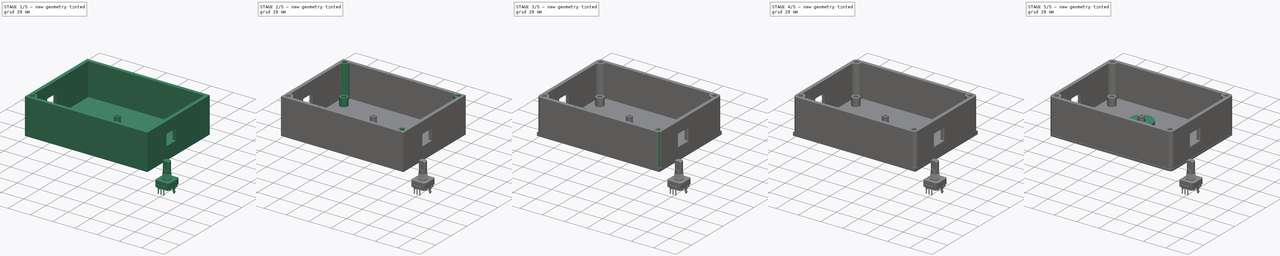
[diagram: build sequence overview — one tinted view per stage of 5, left to right]
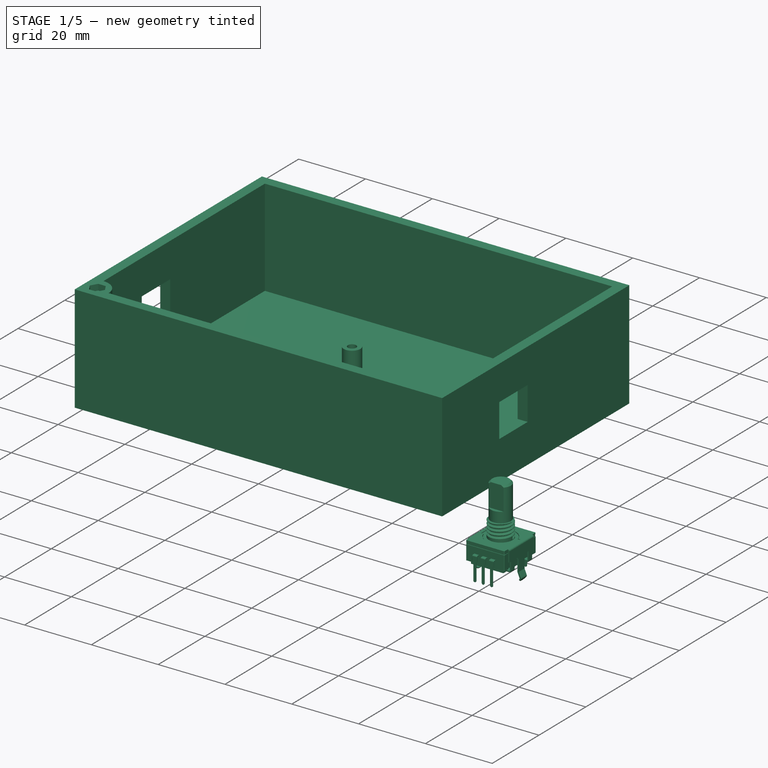
[diagram: stage 1 of 5 — iso view after this stage's code; geometry added in this stage tinted green]
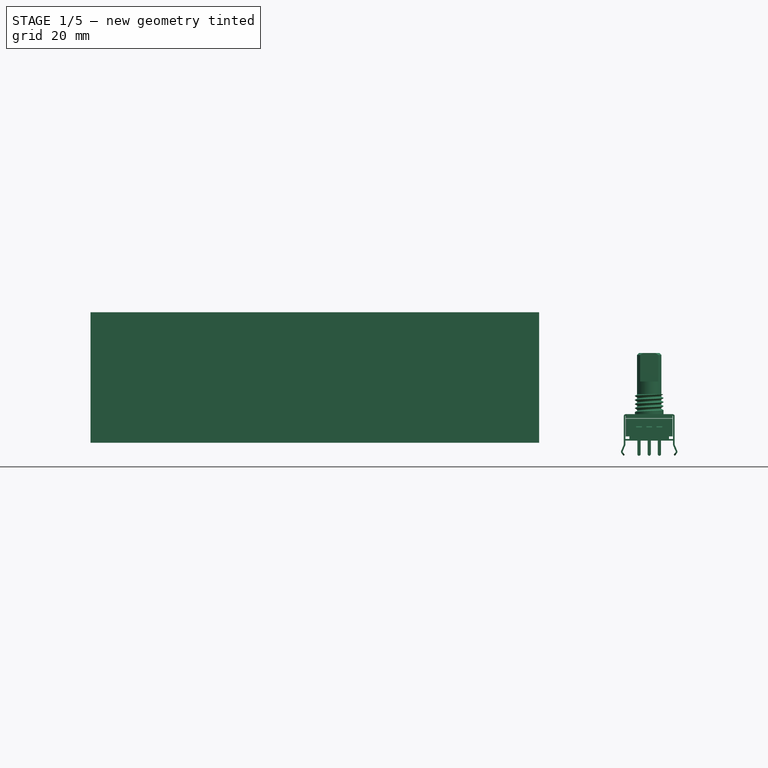
[diagram: stage 1 of 5 — front view after this stage's code; geometry added in this stage tinted green]
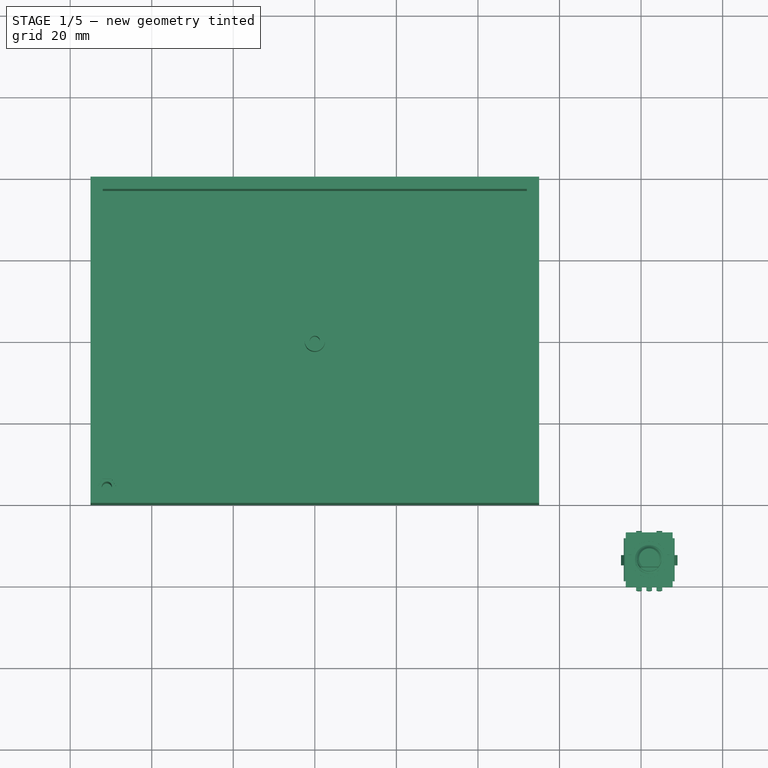
[diagram: stage 1 of 5 — top view after this stage's code; geometry added in this stage tinted green]
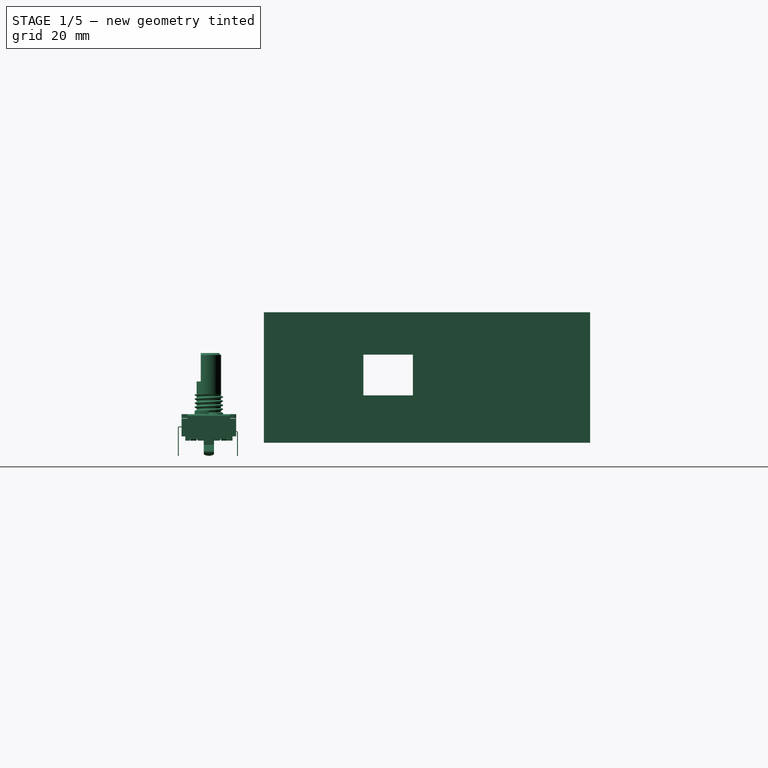
[diagram: stage 1 of 5 — right view after this stage's code; geometry added in this stage tinted green]
FCSTD DOCUMENT  (FreeCAD 0.19R21753 (Git))
Label: enclosure
License: All rights reserved
LicenseURL: http://en.wikipedia.org/wiki/All_rights_reserved
objects: Part::Feature×57, Sketcher::SketchObject×25, PartDesign::Pocket×17, PartDesign::Mirrored×12, PartDesign::Pad×7, PartDesign::MultiTransform×6, PartDesign::Body×6, PartDesign::AdditiveCylinder×5, App::Part×5, PartDesign::Fillet×4, PartDesign::Chamfer×2, PartDesign::PolarPattern×1, PartDesign::CoordinateSystem×1, Part::Compound2×1
note: 178 computed .brp shape members not serialized (recipe doc carries the construction recipe); baked Part::Feature solids carry a one-line shape summary decoded from their .brp

FEATURE [Sketcher::SketchObject] Sketch
  MapMode = 5
  Support = -> [XY_Plane001]
  sketch-geometry (4):
    g0: LineSegment StartX=-55 StartY=40 StartZ=0 EndX=55 EndY=40 EndZ=0
    g1: LineSegment StartX=55 StartY=-40 StartZ=0 EndX=55 EndY=40 EndZ=0
    g2: LineSegment StartX=-55 StartY=-40 StartZ=0 EndX=55 EndY=-40 EndZ=0
    g3: LineSegment StartX=-55 StartY=40 StartZ=0 EndX=-55 EndY=-40 EndZ=0
  constraints (10):
    c: Coincident(g1,g0)
    c: Vertical(g1)
    c: Coincident(g2,g1)
    c: Horizontal(g2)
    c: Coincident(g3,g0)
    c: Coincident(g3,g2)
    c: Distance(g0) = 110
    c: Distance(g3) = 80
    c: Symmetric(g2,g0,g-1)
    c: Symmetric(g0,g0,g-2)
FEATURE [PartDesign::Pad] Pad  label="Body001"
  Length = 32
  Length2 = 100
  Profile = -> Sketch
  Type = 0
FEATURE [Sketcher::SketchObject] Sketch001
  ExternalGeometry = -> [Pad]
  MapMode = 5
  Placement = pos=(0,0,32) rot=(0,0,1;0rad)
  Support = -> [Pad]
  sketch-geometry (4):
    g0: LineSegment StartX=-52 StartY=37 StartZ=0 EndX=52 EndY=37 EndZ=0
    g1: LineSegment StartX=52 StartY=37 StartZ=0 EndX=52 EndY=-37 EndZ=0
    g2: LineSegment StartX=52 StartY=-37 StartZ=0 EndX=-52 EndY=-37 EndZ=0
    g3: LineSegment StartX=-52 StartY=-37 StartZ=0 EndX=-52 EndY=37 EndZ=0
  constraints (12):
    c: Coincident(g0,g1)
    c: Coincident(g1,g2)
    c: Coincident(g2,g3)
    c: Coincident(g3,g0)
    c: Horizontal(g0)
    c: Horizontal(g2)
    c: Vertical(g1)
    c: Vertical(g3)
    c: Distance(g2,g-3) = 3
    c: Distance(g2,g-4) = 3
    c: Distance(g1,g-5) = 3
    c: Distance(g0,g-6) = 3
FEATURE [PartDesign::Pocket] Pocket  label="Content"
  BaseFeature = -> Pad
  Length = 0
  Length2 = 100
  Offset = -3
  Profile = -> Sketch001
  Type = 3
  UpToFace = -> Pad [Face5]
FEATURE [Sketcher::SketchObject] Sketch002
  ExternalGeometry = -> [Pad]
  MapMode = 5
  Placement = pos=(55,0,0) rot=(0.57735,0.57735,0.57735;2.0944rad)
  Support = -> [Pad]
  sketch-geometry (4):
    g0: LineSegment StartX=-15.62 StartY=21.6 StartZ=0 EndX=-3.46 EndY=21.6 EndZ=0
    g1: LineSegment StartX=-3.46 StartY=21.6 StartZ=0 EndX=-3.46 EndY=11.6 EndZ=0
    g2: LineSegment StartX=-3.46 StartY=11.6 StartZ=0 EndX=-15.62 EndY=11.6 EndZ=0
    g3: LineSegment StartX=-15.62 StartY=11.6 StartZ=0 EndX=-15.62 EndY=21.6 EndZ=0
  constraints (12):
    c: Coincident(g0,g1)
    c: Coincident(g1,g2)
    c: Coincident(g2,g3)
    c: Coincident(g3,g0)
    c: Horizontal(g0)
    c: Horizontal(g2)
    c: Vertical(g1)
    c: Vertical(g3)
    c: Distance(g2,g-3) = 24.38
    c: Distance(g2,g-4) = 11.6
    c: DistanceY(g3,g3) = 10
    c: Distance(g2) = 12.16
FEATURE [PartDesign::Pocket] Pocket001  label="side_holes"
  BaseFeature = -> Pocket
  Length = 5
  Length2 = 100
  Profile = -> Sketch002
  Type = 1
FEATURE [PartDesign::AdditiveCylinder] Cylinder  label="corner"
  Angle = 90
  AttacherType = Attacher::AttachEngine3D
  AttachmentOffset = pos=(-52,-37,0) rot=(0,0,1;0rad)
  BaseFeature = -> Pocket001
  Height = 29
  MapMode = 5
  Placement = pos=(-52,-37,3) rot=(0,0,1;0rad)
  Radius = 5
  Support = -> [Pocket001]
FEATURE [Sketcher::SketchObject] Sketch003
  MapMode = 5
  Placement = pos=(-52,-37,32) rot=(0,0,1;0rad)
  Support = -> [Cylinder]
  sketch-geometry (7):
    g0: LineSegment StartX=2.125 StartY=-0.948557 StartZ=0 EndX=3.25 EndY=1 EndZ=0
    g1: LineSegment StartX=3.25 StartY=1 StartZ=0 EndX=2.125 EndY=2.94856 EndZ=0
    g2: LineSegment StartX=2.125 StartY=2.94856 StartZ=0 EndX=-0.125 EndY=2.94856 EndZ=0
    g3: LineSegment StartX=-0.125 StartY=2.94856 StartZ=0 EndX=-1.25 EndY=1 EndZ=0
    g4: LineSegment StartX=-1.25 StartY=1 StartZ=0 EndX=-0.125 EndY=-0.948557 EndZ=0
    g5: LineSegment StartX=-0.125 StartY=-0.948557 StartZ=0 EndX=2.125 EndY=-0.948557 EndZ=0
    g6: Circle [constr] CenterX=1 CenterY=1 CenterZ=0 NormalX=0 NormalY=0 NormalZ=1 AngleXU=0 Radius=2.25
  constraints (17):
    c: Coincident(g0,g1)
    c: Coincident(g1,g2)
    c: Coincident(g2,g3)
    c: Coincident(g3,g4)
    c: Coincident(g4,g5)
    c: Coincident(g5,g0)
    c: Equal(g0, g1-g5) x5
    c: PointOnObject(g0,g6)
    c: PointOnObject(g1,g6)
    c: PointOnObject(g2,g6)
    c: PointOnObject(g3,g6)
    c: PointOnObject(g4,g6)
    c: PointOnObject(g5,g6)
    c: Distance(g6,g0) = 2.25
    c: Parallel(g-1,g5)
    c: Distance(g6,g-2) = 1
    c: Distance(g6,g-1) = 1
FEATURE [PartDesign::Pocket] Pocket002  label="corner_hex_pocket"
  BaseFeature = -> Cylinder
  Length = 1.8
  Length2 = 100
  Placement = pos=(-52,-37,3) rot=(0,0,1;0rad)
  Profile = -> Sketch003
  Type = 0
FEATURE [Sketcher::SketchObject] Sketch004
  ExternalGeometry = -> [Pocket002]
  MapMode = 5
  Placement = pos=(-52,-37,30.2) rot=(0,0,1;0rad)
  Support = -> [Pocket002]
  sketch-geometry (1):
    g0: Circle CenterX=1 CenterY=1 CenterZ=0 NormalX=0 NormalY=0 NormalZ=1 AngleXU=0 Radius=1.25
  constraints (2):
    c: Radius(g0) = 1.25
    c: Symmetric(g-3,g-4,g0)
FEATURE [PartDesign::Pocket] Pocket003  label="corner_round_pocket"
  BaseFeature = -> Pocket002
  Length = 0
  Length2 = 100
  Placement = pos=(-52,-37,3) rot=(0,0,1;0rad)
  Profile = -> Sketch004
  Type = 3
  UpToFace = -> Pocket002 [Face25]
FEATURE [PartDesign::Body] Body
  Group = -> [Sketch,Pad,Sketch001,Pocket,Sketch002,Pocket001,Cylinder,Sketch003,Pocket002,Sketch004,Pocket003,MultiTransform,Mirrored,Mirrored001,MultiTransform001,Mirrored002,Mirrored003,Cylinder001,Sketch020,Pocket015,Sketch021,Pocket016,MultiTransform007,Mirrored014,Mirrored015,MultiTransform008,Mirrored016,Mirrored017,MultiTransform009,Mirrored018,Mirrored019,Fillet,Fillet003,Cylinder003,Sketch022,+8 more]
  Origin = -> Origin001
  Tip = -> Pocket020
FEATURE [Part::Feature] Solid001
  shape: bbox 9.7 x 2.35 x 11.6 mm, 16 faces (baked)
FEATURE [Part::Feature] Shape035  label="Q1_TO_252_3_TabPin2_5EF1C4B6"
  Placement = pos=(13.14,-23.88,0) rot=(0,0,-1;1.5708rad)
  shape: bbox 6.5 x 9.9 x 2.32 mm, 92 faces (baked)
FEATURE [Part::Feature] Shape015  label="R7_R_0805_2012Metric_5EF1CA7B"
  Placement = pos=(69.29,-54.55,0) rot=(0,0,1;0rad)
  shape: bbox 2 x 1.2 x 0.45 mm, 26 faces (baked)
FEATURE [Part::Feature] Shape044  label="SW6_PinHeader_1x02_P254mm_Vertical_5EF2D6B6"
  Placement = pos=(38.54,-64.535,0) rot=(0,0,1;3.14159rad)
  shape: bbox 2.54 x 5.08 x 11.54 mm, 52 faces (baked)
FEATURE [Part::Feature] Shape041  label="R24_R_1206_3216Metric_5EF1C586"
  Placement = pos=(49.53,-9.29,0) rot=(0,0,1;1.5708rad)
  shape: bbox 1.6 x 3.2 x 0.55 mm, 26 faces (baked)
FEATURE [Part::Feature] Shape020  label="C1_C_1206_3216Metric_5EF1CE2C"
  Placement = pos=(69.29,-49.47,0) rot=(0,0,1;0rad)
  shape: bbox 3.2 x 1.6 x 1.6 mm, 28 faces (baked)
FEATURE [Sketcher::SketchObject] PCB_Sketch_1407
  sketch-geometry (10):
    g0: LineSegment StartX=100 StartY=-65 StartZ=0 EndX=100 EndY=-60 EndZ=0
    g1: LineSegment StartX=5 StartY=-70 StartZ=0 EndX=95 EndY=-70 EndZ=0
    g2: LineSegment StartX=0 StartY=-60 StartZ=0 EndX=1e-16 EndY=-65 EndZ=0
    g3: LineSegment StartX=0 StartY=-60 StartZ=0 EndX=-9e-16 EndY=-5 EndZ=0
    g4: LineSegment StartX=100 StartY=-5 StartZ=0 EndX=100 EndY=-60 EndZ=0
    g5: LineSegment StartX=5 StartY=-1.2e-15 StartZ=0 EndX=95 EndY=6e-16 EndZ=0
    g6: ArcOfCircle CenterX=1.42e-14 CenterY=-70 CenterZ=0 NormalX=0 NormalY=0 NormalZ=1 AngleXU=0 Radius=5 StartAngle=0 EndAngle=1.5708
    g7: ArcOfCircle CenterX=0 CenterY=0 CenterZ=0 NormalX=0 NormalY=0 NormalZ=1 AngleXU=0 Radius=5 StartAngle=4.71239 EndAngle=6.28319
    g8: ArcOfCircle CenterX=100 CenterY=0 CenterZ=0 NormalX=0 NormalY=0 NormalZ=1 AngleXU=0 Radius=5 StartAngle=3.14159 EndAngle=4.71239
    g9: ArcOfCircle CenterX=100 CenterY=-70 CenterZ=0 NormalX=0 NormalY=0 NormalZ=1 AngleXU=0 Radius=5 StartAngle=1.5708 EndAngle=3.14159
  constraints (10):
    c: Coincident(g2,g6)
    c: Coincident(g2,g3)
    c: Coincident(g3,g7)
    c: Coincident(g1,g6)
    c: Coincident(g5,g7)
    c: Coincident(g1,g9)
    c: Coincident(g5,g8)
    c: Coincident(g0,g9)
    c: Coincident(g0,g4)
    c: Coincident(g4,g8)
FEATURE [PartDesign::CoordinateSystem] Local_CS_1407
  AttacherType = Attacher::AttachEngine3D
FEATURE [Part::Feature] Shape006  label="R20_R_0805_2012Metric_5EF1CE68"
  Placement = pos=(82.99,-14.37,0) rot=(0,0,1;3.14159rad)
  shape: bbox 2 x 1.2 x 0.45 mm, 26 faces (baked)
FEATURE [Part::Feature] Shape027  label="C8_C_1206_3216Metric_5EF1CBA4"
  Placement = pos=(67.115,-15.005,0) rot=(0,0,1;3.14159rad)
  shape: bbox 3.2 x 1.6 x 1.6 mm, 28 faces (baked)
FEATURE [Part::Feature] Shape028  label="C9_C_1206_3216Metric_5EF1CCD3"
  Placement = pos=(20.76,-20.705,0) rot=(0,0,1;1.5708rad)
  shape: bbox 1.6 x 3.2 x 1.6 mm, 28 faces (baked)
FEATURE [Part::Feature] Shape033  label="D1_SOT_323_SC_70_5EF1C518"
  Placement = pos=(5.52,-22,0) rot=(0,0,1;1.5708rad)
  shape: bbox 2 x 2 x 1.05 mm, 76 faces (baked)
FEATURE [Part::Feature] Shape036  label="Q2_LFPAK56_5EF1C38A"
  Placement = pos=(92.665,-33.105,0) rot=(0,0,-1;1.5708rad)
  shape: bbox 4.9 x 6 x 1.02 mm, 94 faces (baked)
FEATURE [Part::Feature] Shape043  label="SW2_PinHeader_1x02_P254mm_Vertical_5EF2D5F9"
  Placement = pos=(30.92,-64.535,0) rot=(0,0,1;3.14159rad)
  shape: bbox 2.54 x 5.08 x 11.54 mm, 52 faces (baked)
FEATURE [Part::Feature] Shape007  label="R19_R_0805_2012Metric_5EF1CF97"
  Placement = pos=(82.99,-9.29,0) rot=(0,0,1;3.14159rad)
  shape: bbox 2 x 1.2 x 0.45 mm, 26 faces (baked)
FEATURE [Part::Feature] Shape024  label="C5_C_1206_3216Metric_5EF1CD63"
  Placement = pos=(30.92,-21.34,0) rot=(0,0,1;1.5708rad)
  shape: bbox 1.6 x 3.2 x 1.6 mm, 28 faces (baked)
FEATURE [Part::Feature] Shape004  label="R25_R_0805_2012Metric_5EF2B397"
  Placement = pos=(79.025,-41.81,0) rot=(0,0,1;0rad)
  shape: bbox 2 x 1.2 x 0.45 mm, 26 faces (baked)
FEATURE [Part::Feature] Shape014  label="R8_R_0805_2012Metric_5EF2D594"
  Placement = pos=(29.65,-54.375,0) rot=(0,0,-1;1.5708rad)
  shape: bbox 1.2 x 2 x 0.45 mm, 26 faces (baked)
FEATURE [Part::Feature] Shape023  label="C4_C_1206_3216Metric_5EF1CB14"
  Placement = pos=(79.815,-6.115,0) rot=(0,0,1;0rad)
  shape: bbox 3.2 x 1.6 x 1.6 mm, 28 faces (baked)
FEATURE [Part::Feature] Shape009  label="R17_R_0805_2012Metric_5EF1C86B"
  Placement = pos=(69.85,-21.105,0) rot=(0,0,1;3.14159rad)
  shape: bbox 2 x 1.2 x 0.45 mm, 26 faces (baked)
FEATURE [Part::Feature] Shape029  label="C12_C_1206_3216Metric_5EF1CCA3"
  Placement = pos=(43.62,-30.88,0) rot=(0,0,1;3.92699rad)
  shape: bbox 3.394 x 3.394 x 1.6 mm, 28 faces (baked)
FEATURE [Part::Feature] Shape018  label="R3_R_0805_2012Metric_5EF1C8CB"
  Placement = pos=(69.29,-52.01,0) rot=(0,0,1;3.14159rad)
  shape: bbox 2 x 1.2 x 0.45 mm, 26 faces (baked)
FEATURE [Part::Feature] Shape013  label="R9_R_0805_2012Metric_5EF2D5C4"
  Placement = pos=(28.38,-58.185,0) rot=(0,0,1;3.14159rad)
  shape: bbox 2 x 1.2 x 0.45 mm, 26 faces (baked)
FEATURE [Part::Feature] Shape010  label="R16_R_0805_2012Metric_5EF2D504"
  Placement = pos=(36,-58.185,0) rot=(0,0,1;0rad)
  shape: bbox 2 x 1.2 x 0.45 mm, 26 faces (baked)
FEATURE [Part::Feature] Shape016  label="R6_R_0805_2012Metric_5EF1C8FB"
  Placement = pos=(69.29,-57.09,0) rot=(0,0,1;0rad)
  shape: bbox 2 x 1.2 x 0.45 mm, 26 faces (baked)
FEATURE [Part::Feature] Shape017  label="R4_R_0805_2012Metric_5EF1C92B"
  Placement = pos=(69.29,-59.63,0) rot=(0,0,1;0rad)
  shape: bbox 2 x 1.2 x 0.45 mm, 26 faces (baked)
FEATURE [Part::Feature] Shape022  label="C3_C_1206_3216Metric_5EF2D534"
  Placement = pos=(20.32,-53.49,0) rot=(0,0,1;3.14159rad)
  shape: bbox 3.2 x 1.6 x 1.6 mm, 28 faces (baked)
FEATURE [Part::Feature] Shape026  label="C7_C_1206_3216Metric_5EF1CC43"
  Placement = pos=(67.115,-4.845,0) rot=(0,0,1;3.14159rad)
  shape: bbox 3.2 x 1.6 x 1.6 mm, 28 faces (baked)
FEATURE [Part::Feature] Shape021  label="C2_C_1206_3216Metric_5EF1CD93"
  Placement = pos=(69.29,-62.17,0) rot=(0,0,1;0rad)
  shape: bbox 3.2 x 1.6 x 1.6 mm, 28 faces (baked)
FEATURE [Part::Feature] Solid
  shape: bbox 11.5 x 4.35 x 13.4 mm, 29 faces (baked)
FEATURE [Part::Feature] Solid007
  shape: bbox 1.4 x 6.05 x 1.3 mm, 19 faces (baked)
FEATURE [Part::Feature] Shape008  label="R18_R_0805_2012Metric_5EF1CA4B"
  Placement = pos=(82.99,-11.83,0) rot=(0,0,1;3.14159rad)
  shape: bbox 2 x 1.2 x 0.45 mm, 26 faces (baked)
FEATURE [Part::Feature] Shape019  label="R2_R_0805_2012Metric_5EF2D564"
  Placement = pos=(23.7,-58.11,0) rot=(0,0,1;3.14159rad)
  shape: bbox 2 x 1.2 x 0.45 mm, 26 faces (baked)
FEATURE [Part::Feature] Shape042  label="SW1_PinHeader_1x02_P254mm_Vertical_5EF2D638"
  Placement = pos=(23.3,-64.535,0) rot=(0,0,1;3.14159rad)
  shape: bbox 2.54 x 5.08 x 11.54 mm, 52 faces (baked)
FEATURE [Part::Feature] Shape005  label="R21_R_0805_2012Metric_5EF1CF37"
  Placement = pos=(82.99,-16.91,0) rot=(0,0,1;3.14159rad)
  shape: bbox 2 x 1.2 x 0.45 mm, 26 faces (baked)
FEATURE [Part::Feature] Shape002  label="R1_R_0805_2012Metric_5EF2D474"
  Placement = pos=(24.7,-54.365,0) rot=(0,0,-1;1.5708rad)
  shape: bbox 1.2 x 2 x 0.45 mm, 26 faces (baked)
FEATURE [Part::Feature] Shape011  label="R15_R_0805_2012Metric_5EF2D3E4"
  Placement = pos=(37.27,-54.375,0) rot=(0,0,1;1.5708rad)
  shape: bbox 1.2 x 2 x 0.45 mm, 26 faces (baked)
FEATURE [Part::Feature] Shape012  label="R10_R_0805_2012Metric_5EF2B3C7"
  Placement = pos=(79.025,-43.715,0) rot=(0,0,1;0rad)
  shape: bbox 2 x 1.2 x 0.45 mm, 26 faces (baked)
FEATURE [Part::Feature] Solid004
  shape: bbox 1.4 x 7.2 x 0.9 mm, 19 faces (baked)
FEATURE [Part::Feature] Shape001  label="DS1_PinSocket_1x16_P254mm_Vertical_5EF1CED9[2]"
  Placement = pos=(52,-4.5,0) rot=(0,0,-1;1.5708rad)
  shape: bbox 40.64 x 2.54 x 10.1 mm, 506 faces (baked)
FEATURE [Part::Feature] Solid006
  shape: bbox 11.5 x 16 x 13.4 mm, 42 faces (baked)
FEATURE [Part::Feature] Solid008
  shape: bbox 1.4 x 6.05 x 1.3 mm, 19 faces (baked)
FEATURE [Part::Feature] Shape037  label="Q3_SOT_23_5EF26207"
  Placement = pos=(57.15,-10.945,0) rot=(0,0,1;1.5708rad)
  shape: bbox 3 x 2.5 x 1.2 mm, 76 faces (baked)
FEATURE [Part::Feature] Solid003
  shape: bbox 1.4 x 7.2 x 0.9 mm, 19 faces (baked)
FEATURE [Part::Feature] Shape038  label="R5_R_1206_3216Metric_5EF1C43F"
  Placement = pos=(5.52,-27.69,0) rot=(0,0,-1;1.5708rad)
  shape: bbox 1.6 x 3.2 x 0.55 mm, 26 faces (baked)
FEATURE [Part::Feature] Shape039  label="R22_R_1206_3216Metric_5EF1C2F8"
  Placement = pos=(91.365,-24.53,0) rot=(0,0,1;0rad)
  shape: bbox 3.2 x 1.6 x 0.55 mm, 26 faces (baked)
FEATURE [Part::Feature] Solid002
  shape: bbox 1.4 x 7.2 x 0.9 mm, 19 faces (baked)
FEATURE [Part::Feature] Shape040  label="R23_R_1206_3216Metric_5EF1C46F"
  Placement = pos=(91.365,-21.905,0) rot=(0,0,1;0rad)
  shape: bbox 3.2 x 1.6 x 0.55 mm, 26 faces (baked)
FEATURE [Part::Feature] Solid005
  shape: bbox 13.85 x 10.2 x 13.4 mm, 137 faces (baked)
FEATURE [Part::Compound2] Compound  label="SW3_PEC11R-4215F-S0024_5EF2B771"
  Links = -> [Solid,Solid001,Solid002,Solid003,Solid004,Solid005,Solid006,Solid007,Solid008]
  Placement = pos=(82,-53.5,7) rot=(0,0.707107,0.707107;3.14159rad)
FEATURE [Part::Feature] Shape  label="DS1_lcm1602c_5EF1CED9"
  Placement = pos=(45.7,-20.25,15) rot=(1,0,0;1.5708rad)
  shape: bbox 80.76 x 36 x 22.85 mm, 1285 faces (baked)
FEATURE [Part::Feature] Shape003  label="U3_TQFP_32_7x7mm_P08mm_5EF1CFED"
  Placement = pos=(52.51,-25.8,0) rot=(0,0,1;3.92699rad)
  shape: bbox 10.59 x 10.59 x 1.1 mm, 524 faces (baked)
FEATURE [Part::Feature] Shape025  label="C6_C_1206_3216Metric_5EF2D324"
  Placement = pos=(27.11,-63.265,0) rot=(0,0,-1;1.5708rad)
  shape: bbox 1.6 x 3.2 x 1.6 mm, 28 faces (baked)
FEATURE [Part::Feature] Pcb_1407
  Placement = pos=(-101,60,0) rot=(0,0,1;0rad)
  shape: bbox 100 x 70 x 1.6 mm, 115 faces (baked)
FEATURE [App::Part] Board_Geoms_1407
  Group = -> [Local_CS_1407,Pcb_1407,PCB_Sketch_1407]
  Origin = -> Origin005
FEATURE [Part::Feature] Shape031  label="C14_C_1206_3216Metric_5EF3602E"
  Placement = pos=(34.73,-63.265,0) rot=(0,0,-1;1.5708rad)
  shape: bbox 1.6 x 3.2 x 1.6 mm, 28 faces (baked)
FEATURE [Part::Feature] Shape046  label="U2_TO_252_3_TabPin2_5EF1C5CD"
  Placement = pos=(25.84,-23.88,0) rot=(0,0,-1;1.5708rad)
  shape: bbox 6.5 x 9.9 x 2.32 mm, 92 faces (baked)
FEATURE [Part::Feature] Shape045  label="U1_SOIC_8_39x49mm_P127mm_5EF1C6C4"
  Placement = pos=(76.005,-11.195,0) rot=(0,0,1;0rad)
  shape: bbox 6 x 4.9 x 1.75 mm, 156 faces (baked)
FEATURE [Part::Feature] Shape034  label="J2_PinHeader_2x03_P254mm_Vertical_5EF1C636"
  Placement = pos=(73,-40.8,0) rot=(0,0,-1;1.5708rad)
  shape: bbox 7.62 x 5.08 x 11.54 mm, 130 faces (baked)
FEATURE [Part::Feature] Shape030  label="C13_C_1206_3216Metric_5EF1CC73"
  Placement = pos=(59.495,-20.085,0) rot=(0,0,1;3.92699rad)
  shape: bbox 3.394 x 3.394 x 1.6 mm, 28 faces (baked)
FEATURE [Part::Feature] Shape032  label="C15_C_1206_3216Metric_5EF2B367"
  Placement = pos=(79.025,-39.27,0) rot=(0,0,1;0rad)
  shape: bbox 3.2 x 1.6 x 1.6 mm, 28 faces (baked)
FEATURE [App::Part] Top_1407
  Group = -> [Shape,Shape001,Solid001,Solid,Solid007,Solid004,Solid006,Solid008,Solid003,Solid002,Solid005,Compound,Shape002,Shape003,Shape004,Shape005,Shape006,Shape007,Shape008,Shape009,Shape010,Shape011,Shape012,Shape013,Shape014,Shape015,Shape016,Shape017,Shape018,Shape019,Shape020,Shape021,Shape022,Shape023,Shape024,Shape025,Shape026,Shape027,Shape028,Shape029,Shape030,Shape031,Shape032,Shape033,Shape034,+12 more]
  Origin = -> Origin006
FEATURE [App::Part] Step_Models_1407
  Group = -> [Top_1407]
  Origin = -> Origin008
FEATURE [App::Part] Board_1407  label="lanternfish"
  Group = -> [Board_Geoms_1407,Step_Models_1407]
  Origin = -> Origin007
  Placement = pos=(-50,35,11.6) rot=(0,0,1;0rad)
FEATURE [Sketcher::SketchObject] Sketch026
  MapMode = 5
  Support = -> [XY_Plane009]
  sketch-geometry (2):
    g0: Circle CenterX=0 CenterY=0 CenterZ=0 NormalX=0 NormalY=0 NormalZ=1 AngleXU=0 Radius=2.5
    g1: Circle CenterX=0 CenterY=0 CenterZ=0 NormalX=0 NormalY=0 NormalZ=1 AngleXU=0 Radius=1.25
  constraints (4):
    c: Coincident(g0,g-1)
    c: Coincident(g1,g0)
    c: Radius(g1) = 1.25
    c: Radius(g0) = 2.5
FEATURE [PartDesign::Pad] Pad005
  Length = 16
  Length2 = 100
  Profile = -> Sketch026
  Type = 0
FEATURE [PartDesign::Body] Body004
  Group = -> [Sketch026,Pad005]
  Origin = -> Origin009
  Placement = pos=(-42,-1,11.6) rot=(0,0,1;0rad)
  Tip = -> Pad005
FEATURE [Sketcher::SketchObject] Sketch027
  MapMode = 5
  Support = -> [XY_Plane010]
  sketch-geometry (2):
    g0: Circle CenterX=0 CenterY=0 CenterZ=0 NormalX=0 NormalY=0 NormalZ=1 AngleXU=0 Radius=2.5
    g1: Circle CenterX=0 CenterY=0 CenterZ=0 NormalX=0 NormalY=0 NormalZ=1 AngleXU=0 Radius=1.25
  constraints (4):
    c: Coincident(g0,g-1)
    c: Coincident(g1,g0)
    c: Radius(g1) = 1.25
    c: Radius(g0) = 2.5
FEATURE [PartDesign::Pad] Pad006
  Length = 16
  Length2 = 100
  Profile = -> Sketch027
  Type = 0
FEATURE [PartDesign::Body] Body005
  Group = -> [Sketch027,Pad006]
  Origin = -> Origin010
  Placement = pos=(33,-1,11.6) rot=(0,0,1;0rad)
  Tip = -> Pad006
FEATURE [App::Part] Part  label="Box"
  Group = -> [Body,Body001,Body002,Body003,Body004,Body005]
  Origin = -> Origin
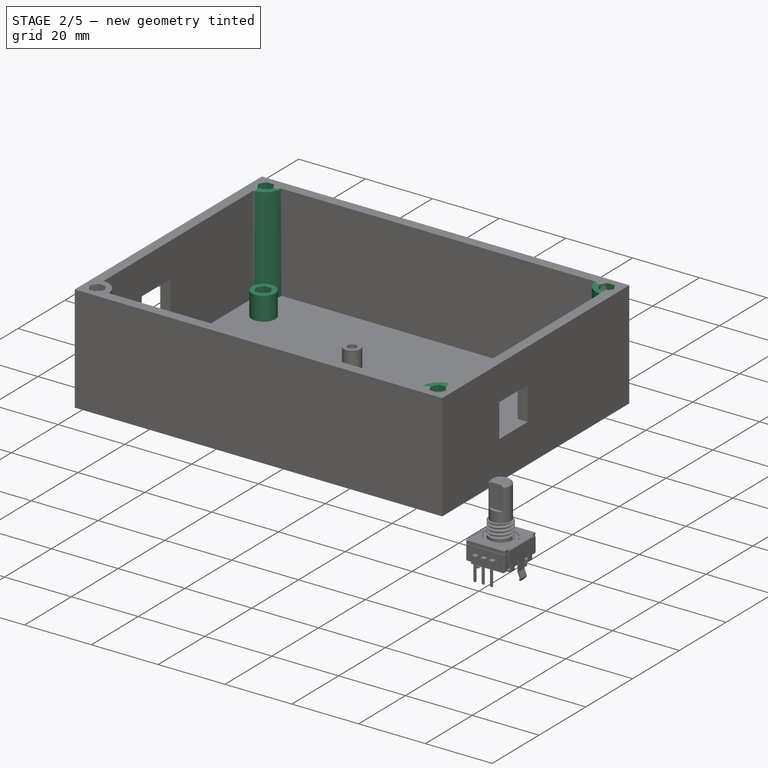
[diagram: stage 2 of 5 — iso view after this stage's code; geometry added in this stage tinted green]
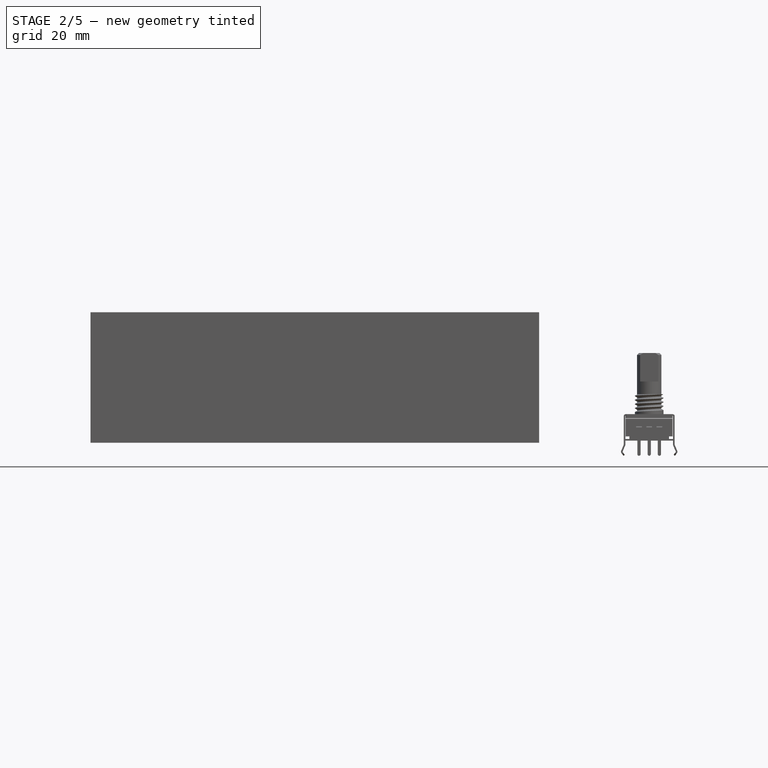
[diagram: stage 2 of 5 — front view after this stage's code; geometry added in this stage tinted green]
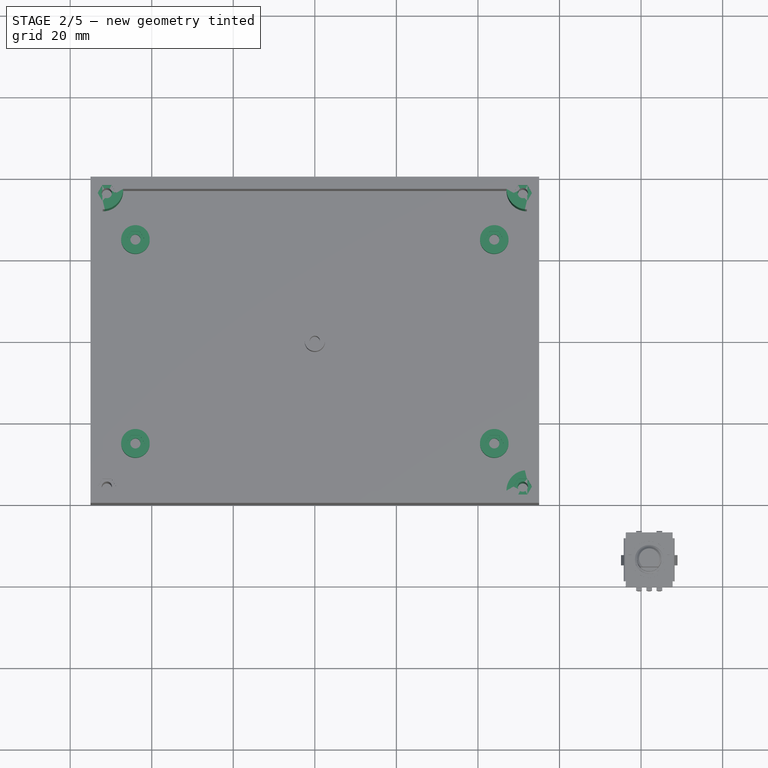
[diagram: stage 2 of 5 — top view after this stage's code; geometry added in this stage tinted green]
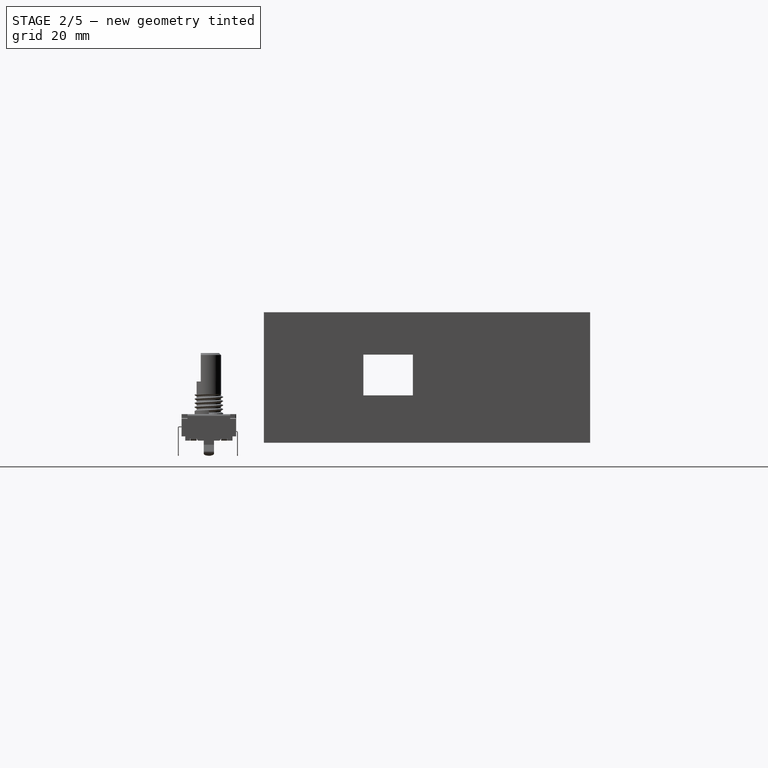
[diagram: stage 2 of 5 — right view after this stage's code; geometry added in this stage tinted green]
FEATURE [PartDesign::Mirrored] Mirrored
  MirrorPlane = -> YZ_Plane001
  Placement = pos=(-52,-37,3) rot=(0,0,1;0rad)
FEATURE [PartDesign::Mirrored] Mirrored001
  MirrorPlane = -> XZ_Plane001
  Placement = pos=(-52,-37,3) rot=(0,0,1;0rad)
FEATURE [PartDesign::MultiTransform] MultiTransform
  BaseFeature = -> Pocket003
  Originals = -> [Cylinder,Pocket003]
  Placement = pos=(-52,-37,3) rot=(0,0,1;0rad)
  Transformations = -> [Mirrored,Mirrored001]
FEATURE [PartDesign::Mirrored] Mirrored002
  MirrorPlane = -> XZ_Plane001
  Placement = pos=(-52,-37,3) rot=(0,0,1;0rad)
FEATURE [PartDesign::Mirrored] Mirrored003
  MirrorPlane = -> YZ_Plane001
  Placement = pos=(-52,-37,3) rot=(0,0,1;0rad)
FEATURE [PartDesign::MultiTransform] MultiTransform001
  BaseFeature = -> MultiTransform
  Originals = -> [Pocket002]
  Placement = pos=(-52,-37,3) rot=(0,0,1;0rad)
  Transformations = -> [Mirrored002,Mirrored003]
FEATURE [PartDesign::AdditiveCylinder] Cylinder001  label="Stud"
  Angle = 360
  AttacherType = Attacher::AttachEngine3D
  AttachmentOffset = pos=(8,12,0) rot=(0,0,1;0rad)
  BaseFeature = -> MultiTransform001
  Height = 7
  MapMode = 5
  Placement = pos=(-44,-25,3) rot=(0,0,1;0rad)
  Radius = 3.5
  Support = -> [MultiTransform001]
FEATURE [PartDesign::Body] Body001  label="Lid"
  Group = -> [Sketch007,Pad001,Sketch008,Pad002,Sketch009,Pocket006,Chamfer,MultiTransform006,Mirrored012,Mirrored013,Sketch012,Pocket009,Sketch013,Pocket010,Sketch014,Pocket011,Sketch015,Pad003,Sketch016,Pocket012,Fillet001,Fillet002,Chamfer001]
  Origin = -> Origin002
  Placement = pos=(0,0,32) rot=(0,0,1;0rad)
  Tip = -> Chamfer001
FEATURE [Sketcher::SketchObject] Sketch020
  MapMode = 5
  Placement = pos=(-44,-25,10) rot=(0,0,1;0rad)
  Support = -> [Cylinder001]
  sketch-geometry (7):
    g0: LineSegment StartX=2.25 StartY=0 StartZ=0 EndX=1.125 EndY=1.94856 EndZ=0
    g1: LineSegment StartX=1.125 StartY=1.94856 StartZ=0 EndX=-1.125 EndY=1.94856 EndZ=0
    g2: LineSegment StartX=-1.125 StartY=1.94856 StartZ=0 EndX=-2.25 EndY=-1.1289e-12 EndZ=0
    g3: LineSegment StartX=-2.25 StartY=-1.1289e-12 StartZ=0 EndX=-1.125 EndY=-1.94856 EndZ=0
    g4: LineSegment StartX=-1.125 StartY=-1.94856 StartZ=0 EndX=1.125 EndY=-1.94856 EndZ=0
    g5: LineSegment StartX=1.125 StartY=-1.94856 StartZ=0 EndX=2.25 EndY=0 EndZ=0
    g6: Circle [constr] CenterX=0 CenterY=0 CenterZ=0 NormalX=0 NormalY=0 NormalZ=1 AngleXU=0 Radius=2.25
  constraints (16):
    c: Coincident(g0,g1)
    c: Coincident(g1,g2)
    c: Coincident(g2,g3)
    c: Coincident(g3,g4)
    c: Coincident(g4,g5)
    c: Coincident(g5,g0)
    c: Equal(g0, g1-g5) x5
    c: PointOnObject(g0,g6)
    c: PointOnObject(g1,g6)
    c: PointOnObject(g2,g6)
    c: PointOnObject(g3,g6)
    c: PointOnObject(g4,g6)
    c: PointOnObject(g5,g6)
    c: Coincident(g6,g-1)
    c: PointOnObject(g5,g-1)
    c: Distance(g-1,g0) = 2.25
FEATURE [PartDesign::Pocket] Pocket015
  BaseFeature = -> Cylinder001
  Length = 1.8
  Length2 = 100
  Placement = pos=(-44,-25,3) rot=(0,0,1;0rad)
  Profile = -> Sketch020
  Type = 0
FEATURE [Sketcher::SketchObject] Sketch021
  MapMode = 5
  Placement = pos=(-44,-25,8.2) rot=(0,0,1;0rad)
  Support = -> [Pocket015]
  sketch-geometry (1):
    g0: Circle CenterX=0 CenterY=0 CenterZ=0 NormalX=0 NormalY=0 NormalZ=1 AngleXU=0 Radius=1.25
  constraints (2):
    c: Coincident(g0,g-1)
    c: Radius(g0) = 1.25
FEATURE [PartDesign::Pocket] Pocket016
  BaseFeature = -> Pocket015
  Length = 0
  Length2 = 100
  Placement = pos=(-44,-25,3) rot=(0,0,1;0rad)
  Profile = -> Sketch021
  Type = 3
  UpToFace = -> Pocket015 [Face46]
FEATURE [PartDesign::Mirrored] Mirrored014
  MirrorPlane = -> YZ_Plane001
  Placement = pos=(-44,-25,3) rot=(0,0,1;0rad)
FEATURE [PartDesign::Mirrored] Mirrored015
  MirrorPlane = -> XZ_Plane001
  Placement = pos=(-44,-25,3) rot=(0,0,1;0rad)
FEATURE [PartDesign::MultiTransform] MultiTransform007
  BaseFeature = -> Pocket016
  Originals = -> [Cylinder001]
  Placement = pos=(-44,-25,3) rot=(0,0,1;0rad)
  Transformations = -> [Mirrored014,Mirrored015]
FEATURE [PartDesign::Mirrored] Mirrored016
  MirrorPlane = -> YZ_Plane001
  Placement = pos=(-44,-25,3) rot=(0,0,1;0rad)
FEATURE [PartDesign::Mirrored] Mirrored017
  MirrorPlane = -> XZ_Plane001
  Placement = pos=(-44,-25,3) rot=(0,0,1;0rad)
FEATURE [PartDesign::MultiTransform] MultiTransform008
  BaseFeature = -> MultiTransform007
  Originals = -> [Pocket015]
  Placement = pos=(-44,-25,3) rot=(0,0,1;0rad)
  Transformations = -> [Mirrored016,Mirrored017]
FEATURE [PartDesign::Mirrored] Mirrored018
  MirrorPlane = -> YZ_Plane001
  Placement = pos=(-44,-25,3) rot=(0,0,1;0rad)
FEATURE [PartDesign::Mirrored] Mirrored019
  MirrorPlane = -> XZ_Plane001
  Placement = pos=(-44,-25,3) rot=(0,0,1;0rad)
FEATURE [PartDesign::MultiTransform] MultiTransform009
  BaseFeature = -> MultiTransform008
  Originals = -> [Pocket016]
  Placement = pos=(-44,-25,3) rot=(0,0,1;0rad)
  Transformations = -> [Mirrored018,Mirrored019]
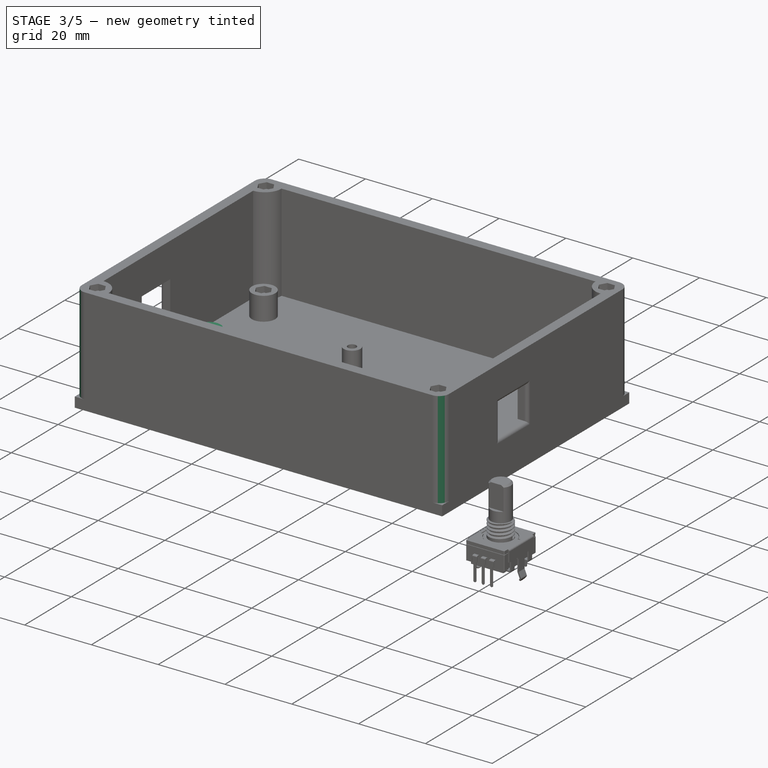
[diagram: stage 3 of 5 — iso view after this stage's code; geometry added in this stage tinted green]
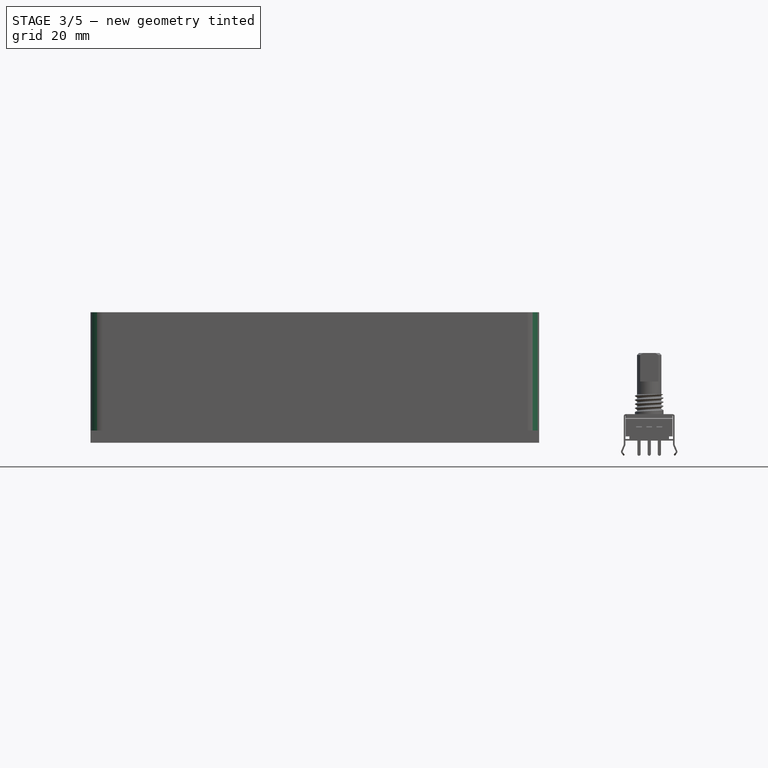
[diagram: stage 3 of 5 — front view after this stage's code; geometry added in this stage tinted green]
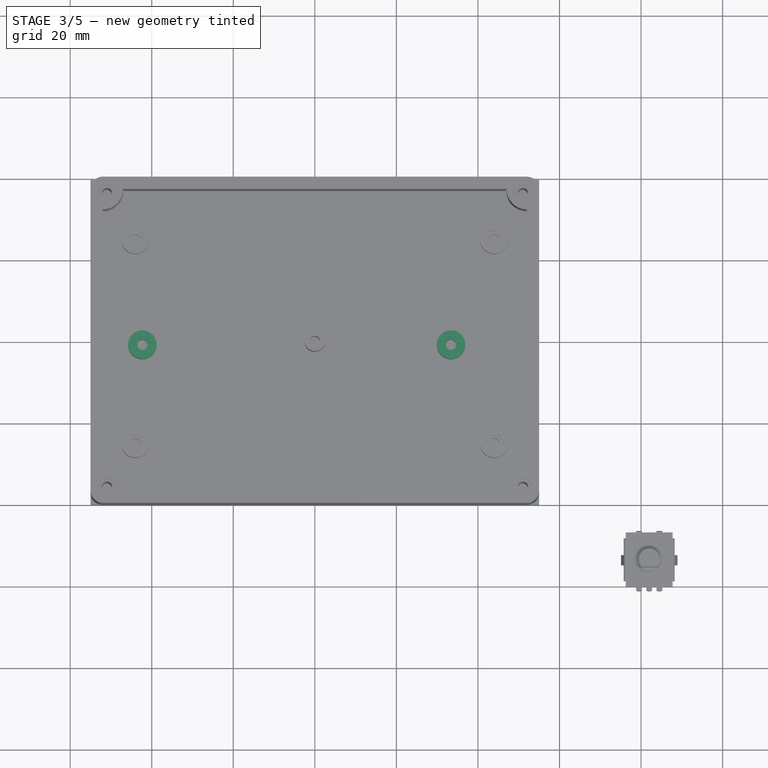
[diagram: stage 3 of 5 — top view after this stage's code; geometry added in this stage tinted green]
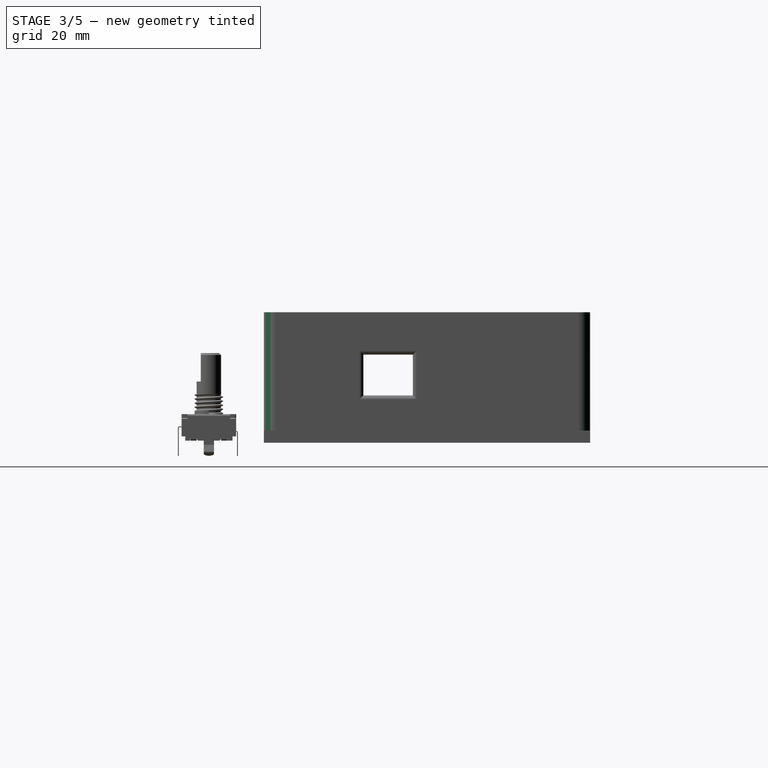
[diagram: stage 3 of 5 — right view after this stage's code; geometry added in this stage tinted green]
FEATURE [Sketcher::SketchObject] Sketch007
  MapMode = 5
  Support = -> [XY_Plane002]
  sketch-geometry (4):
    g0: LineSegment StartX=-55 StartY=40 StartZ=0 EndX=55 EndY=40 EndZ=0
    g1: LineSegment StartX=55 StartY=40 StartZ=0 EndX=55 EndY=-40 EndZ=0
    g2: LineSegment StartX=55 StartY=-40 StartZ=0 EndX=-55 EndY=-40 EndZ=0
    g3: LineSegment StartX=-55 StartY=-40 StartZ=0 EndX=-55 EndY=40 EndZ=0
  constraints (10):
    c: Coincident(g0,g1)
    c: Coincident(g1,g2)
    c: Coincident(g2,g3)
    c: Coincident(g3,g0)
    c: Horizontal(g2)
    c: Vertical(g1)
    c: Symmetric(g0,g0,g-2)
    c: Distance(g0) = 110
    c: Distance(g3) = 80
    c: Symmetric(g0,g2,g-1)
FEATURE [PartDesign::Pad] Pad001
  Length = 3
  Length2 = 100
  Profile = -> Sketch007
  Type = 0
FEATURE [PartDesign::Fillet] Fillet
  Base = -> MultiTransform009 [Edge19,Edge12,Edge13,Edge3,Edge5,Edge2,Edge7,Edge1]
  BaseFeature = -> MultiTransform009
  Placement = pos=(-44,-25,3) rot=(0,0,1;0rad)
  Radius = 3
  SupportTransform = true
FEATURE [PartDesign::Fillet] Fillet003
  Base = -> Fillet [Edge61,Edge60,Edge59,Edge62,Edge55,Edge54,Edge56,Edge53]
  BaseFeature = -> Fillet
  Placement = pos=(-44,-25,3) rot=(0,0,1;0rad)
  Radius = 1
  SupportTransform = true
FEATURE [PartDesign::AdditiveCylinder] Cylinder003
  Angle = 360
  AttacherType = Attacher::AttachEngine3D
  AttachmentOffset = pos=(1.7,24.2,0) rot=(0,0,1;0rad)
  BaseFeature = -> Fillet003
  Height = 7
  MapMode = 5
  Placement = pos=(-42.3,-0.8,3) rot=(0,0,1;0rad)
  Radius = 3.5
  Support = -> [Fillet003]
FEATURE [Sketcher::SketchObject] Sketch022
  MapMode = 5
  Placement = pos=(-42.3,-0.8,10) rot=(0,0,1;0rad)
  Support = -> [Cylinder003]
  sketch-geometry (7):
    g0: LineSegment StartX=2.25 StartY=0 StartZ=0 EndX=1.125 EndY=1.94856 EndZ=0
    g1: LineSegment StartX=1.125 StartY=1.94856 StartZ=0 EndX=-1.125 EndY=1.94856 EndZ=0
    g2: LineSegment StartX=-1.125 StartY=1.94856 StartZ=0 EndX=-2.25 EndY=0 EndZ=0
    g3: LineSegment StartX=-2.25 StartY=0 StartZ=0 EndX=-1.125 EndY=-1.94856 EndZ=0
    g4: LineSegment StartX=-1.125 StartY=-1.94856 StartZ=0 EndX=1.125 EndY=-1.94856 EndZ=0
    g5: LineSegment StartX=1.125 StartY=-1.94856 StartZ=0 EndX=2.25 EndY=0 EndZ=0
    g6: Circle [constr] CenterX=0 CenterY=0 CenterZ=0 NormalX=0 NormalY=0 NormalZ=1 AngleXU=0 Radius=2.25
  constraints (16):
    c: Coincident(g0,g1)
    c: Coincident(g1,g2)
    c: Coincident(g2,g3)
    c: Coincident(g3,g4)
    c: Coincident(g4,g5)
    c: Coincident(g5,g0)
    c: Equal(g0, g1-g5) x5
    c: PointOnObject(g0,g6)
    c: PointOnObject(g1,g6)
    c: PointOnObject(g2,g6)
    c: PointOnObject(g3,g6)
    c: PointOnObject(g4,g6)
    c: PointOnObject(g5,g6)
    c: Coincident(g6,g-1)
    c: PointOnObject(g5,g-1)
    c: Distance(g-1,g0) = 2.25
FEATURE [PartDesign::Pocket] Pocket017
  BaseFeature = -> Cylinder003
  Length = 1.8
  Length2 = 100
  Placement = pos=(-42.3,-0.8,3) rot=(0,0,1;0rad)
  Profile = -> Sketch022
  Type = 0
FEATURE [Sketcher::SketchObject] Sketch023
  MapMode = 5
  Placement = pos=(-42.3,-0.8,8.2) rot=(0,0,1;0rad)
  Support = -> [Pocket017]
  sketch-geometry (1):
    g0: Circle CenterX=0 CenterY=0 CenterZ=0 NormalX=0 NormalY=0 NormalZ=1 AngleXU=0 Radius=1.25
  constraints (2):
    c: Coincident(g0,g-1)
    c: Radius(g0) = 1.25
FEATURE [PartDesign::Pocket] Pocket018
  BaseFeature = -> Pocket017
  Length = 0
  Length2 = 100
  Placement = pos=(-42.3,-0.8,3) rot=(0,0,1;0rad)
  Profile = -> Sketch023
  Type = 3
  UpToFace = -> Pocket017 [Face62]
FEATURE [PartDesign::AdditiveCylinder] Cylinder004
  Angle = 360
  AttacherType = Attacher::AttachEngine3D
  AttachmentOffset = pos=(75.7,0,0) rot=(0,0,1;0rad)
  BaseFeature = -> Pocket018
  Height = 7
  MapMode = 5
  Placement = pos=(33.4,-0.8,3) rot=(0,0,1;0rad)
  Radius = 3.5
  Support = -> [Pocket018]
FEATURE [Sketcher::SketchObject] Sketch024
  MapMode = 5
  Placement = pos=(33.4,-0.8,10) rot=(0,0,1;0rad)
  Support = -> [Cylinder004]
  sketch-geometry (7):
    g0: LineSegment StartX=2.25 StartY=0 StartZ=0 EndX=1.125 EndY=1.94856 EndZ=0
    g1: LineSegment StartX=1.125 StartY=1.94856 StartZ=0 EndX=-1.125 EndY=1.94856 EndZ=0
    g2: LineSegment StartX=-1.125 StartY=1.94856 StartZ=0 EndX=-2.25 EndY=-2e-16 EndZ=0
    g3: LineSegment StartX=-2.25 StartY=-2e-16 StartZ=0 EndX=-1.125 EndY=-1.94856 EndZ=0
    g4: LineSegment StartX=-1.125 StartY=-1.94856 StartZ=0 EndX=1.125 EndY=-1.94856 EndZ=0
    g5: LineSegment StartX=1.125 StartY=-1.94856 StartZ=0 EndX=2.25 EndY=0 EndZ=0
    g6: Circle [constr] CenterX=0 CenterY=0 CenterZ=0 NormalX=0 NormalY=0 NormalZ=1 AngleXU=0 Radius=2.25
  constraints (16):
    c: Coincident(g0,g1)
    c: Coincident(g1,g2)
    c: Coincident(g2,g3)
    c: Coincident(g3,g4)
    c: Coincident(g4,g5)
    c: Coincident(g5,g0)
    c: Equal(g0, g1-g5) x5
    c: PointOnObject(g0,g6)
    c: PointOnObject(g1,g6)
    c: PointOnObject(g2,g6)
    c: PointOnObject(g3,g6)
    c: PointOnObject(g4,g6)
    c: PointOnObject(g5,g6)
    c: Coincident(g6,g-1)
    c: PointOnObject(g5,g-1)
    c: Distance(g-1,g0) = 2.25
FEATURE [PartDesign::Pocket] Pocket019
  BaseFeature = -> Cylinder004
  Length = 1.8
  Length2 = 100
  Placement = pos=(33.4,-0.8,3) rot=(0,0,1;0rad)
  Profile = -> Sketch024
  Type = 0
FEATURE [Sketcher::SketchObject] Sketch025
  MapMode = 5
  Placement = pos=(33.4,-0.8,8.2) rot=(0,0,1;0rad)
  Support = -> [Pocket019]
  sketch-geometry (1):
    g0: Circle CenterX=0 CenterY=0 CenterZ=0 NormalX=0 NormalY=0 NormalZ=1 AngleXU=0 Radius=1.25
  constraints (2):
    c: Coincident(g0,g-1)
    c: Radius(g0) = 1.25
FEATURE [PartDesign::Pocket] Pocket020
  BaseFeature = -> Pocket019
  Length = 0
  Length2 = 100
  Placement = pos=(33.4,-0.8,3) rot=(0,0,1;0rad)
  Profile = -> Sketch025
  Type = 3
  UpToFace = -> Pocket019 [Face62]
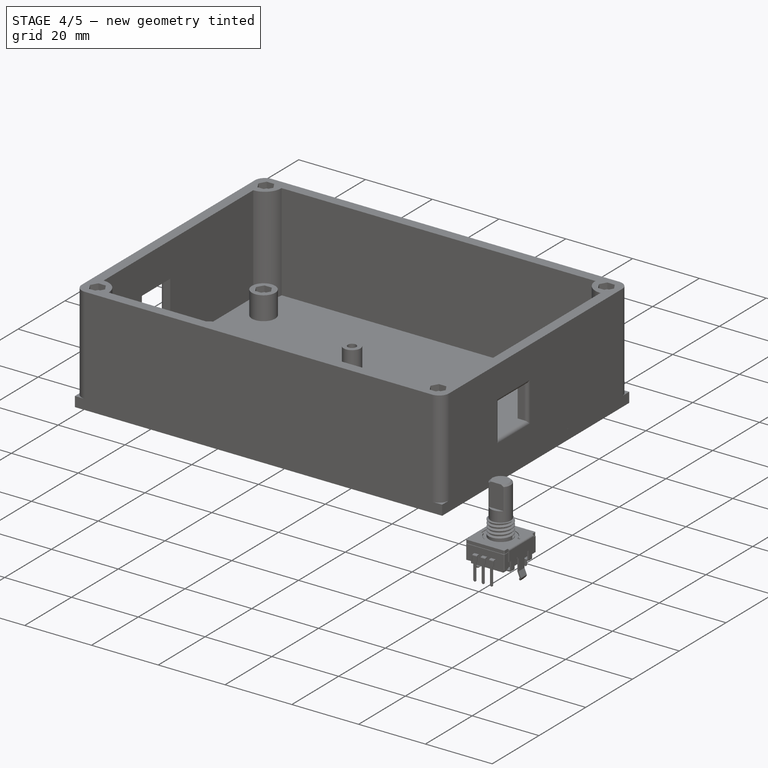
[diagram: stage 4 of 5 — iso view after this stage's code; geometry added in this stage tinted green]
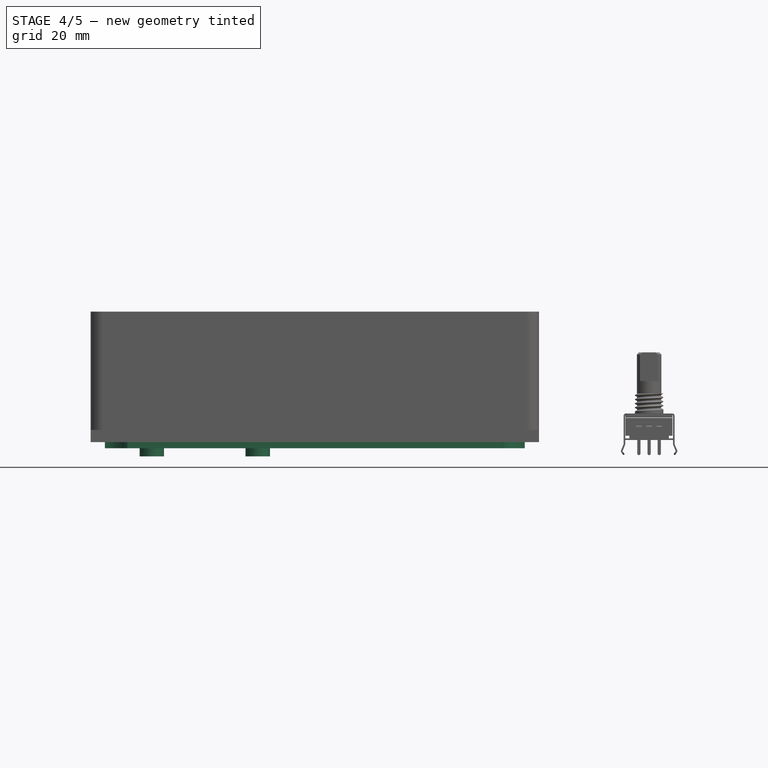
[diagram: stage 4 of 5 — front view after this stage's code; geometry added in this stage tinted green]
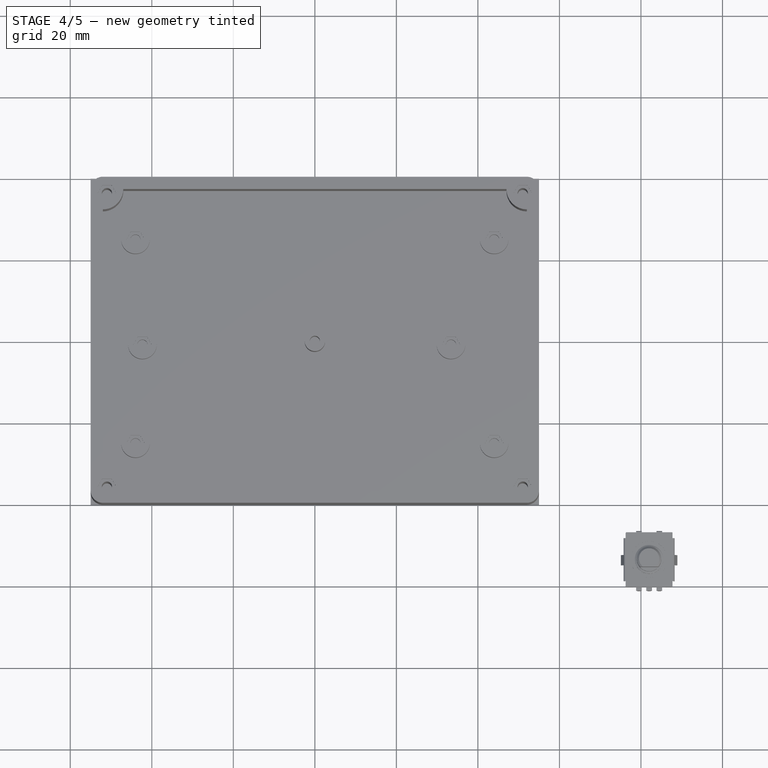
[diagram: stage 4 of 5 — top view after this stage's code; geometry added in this stage tinted green]
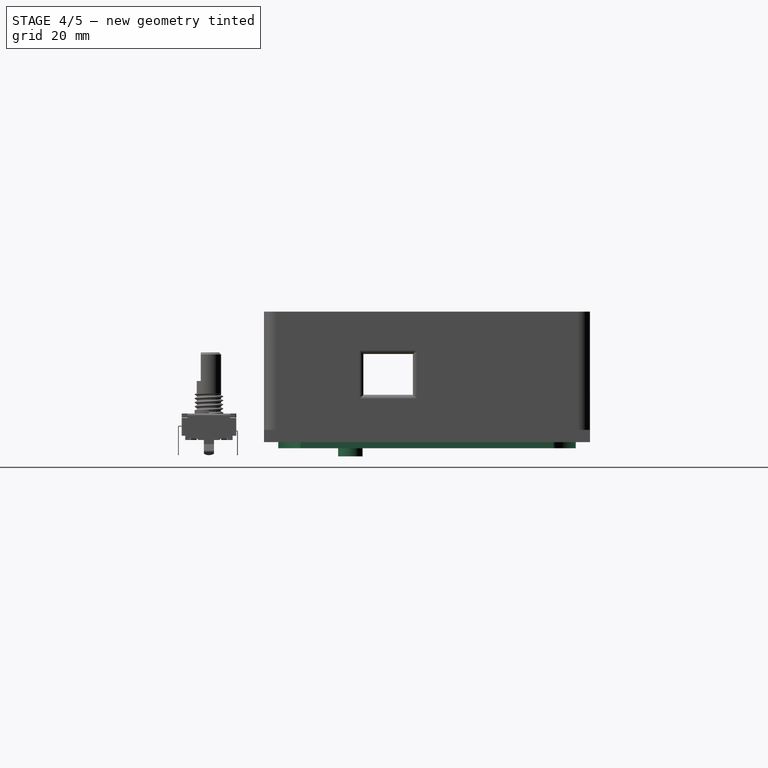
[diagram: stage 4 of 5 — right view after this stage's code; geometry added in this stage tinted green]
FEATURE [Sketcher::SketchObject] Sketch008
  ExternalGeometry = -> [Pad001]
  MapMode = 5
  Placement = pos=(0,0,0) rot=(1,0,0;3.14159rad)
  Support = -> [Pad001]
  sketch-geometry (16):
    g0: ArcOfCircle CenterX=-51.5 CenterY=-36.5 CenterZ=0 NormalX=0 NormalY=0 NormalZ=1 AngleXU=0 Radius=5.5 StartAngle=0 EndAngle=1.5708
    g1: LineSegment StartX=-46 StartY=-36.5 StartZ=0 EndX=46 EndY=-36.5 EndZ=0
    g2: LineSegment StartX=-51.5 StartY=-31 StartZ=0 EndX=-51.5 EndY=31 EndZ=0
    g3: LineSegment StartX=-46 StartY=36.5 StartZ=0 EndX=46 EndY=36.5 EndZ=0
    g4: LineSegment StartX=51.5 StartY=31 StartZ=0 EndX=51.5 EndY=-31 EndZ=0
    g5: ArcOfCircle CenterX=-51.5 CenterY=36.5 CenterZ=0 NormalX=0 NormalY=0 NormalZ=1 AngleXU=0 Radius=5.5 StartAngle=4.71239 EndAngle=6.28319
    g6: ArcOfCircle CenterX=51.5 CenterY=36.5 CenterZ=0 NormalX=0 NormalY=0 NormalZ=1 AngleXU=0 Radius=5.5 StartAngle=3.14159 EndAngle=4.71239
    g7: ArcOfCircle CenterX=51.5 CenterY=-36.5 CenterZ=0 NormalX=0 NormalY=0 NormalZ=1 AngleXU=0 Radius=5.5 StartAngle=1.5708 EndAngle=3.14159
    g8: LineSegment StartX=-50 StartY=29.6626 StartZ=0 EndX=-50 EndY=-29.6626 EndZ=0
    g9: LineSegment StartX=-44.6626 StartY=35 StartZ=0 EndX=44.6626 EndY=35 EndZ=0
    g10: LineSegment StartX=50 StartY=29.6626 StartZ=0 EndX=50 EndY=-29.6626 EndZ=0
    g11: LineSegment StartX=44.6626 StartY=-35 StartZ=0 EndX=-44.6626 EndY=-35 EndZ=0
    g12: ArcOfCircle CenterX=51.5 CenterY=36.5 CenterZ=0 NormalX=0 NormalY=0 NormalZ=1 AngleXU=0 Radius=7 StartAngle=3.35755 EndAngle=4.49643
    g13: ArcOfCircle CenterX=-51.5 CenterY=-36.5 CenterZ=0 NormalX=0 NormalY=0 NormalZ=1 AngleXU=0 Radius=7 StartAngle=0.21596 EndAngle=1.35484
    g14: ArcOfCircle CenterX=51.5 CenterY=-36.5 CenterZ=0 NormalX=0 NormalY=0 NormalZ=1 AngleXU=0 Radius=7 StartAngle=1.78676 EndAngle=2.92563
    g15: ArcOfCircle CenterX=-51.5 CenterY=36.5 CenterZ=0 NormalX=0 NormalY=0 NormalZ=1 AngleXU=0 Radius=7 StartAngle=4.92835 EndAngle=6.06722
  constraints (52):
    c: Coincident(g1,g0)
    c: Horizontal(g1)
    c: Coincident(g2,g0)
    c: Vertical(g2)
    c: Horizontal(g3)
    c: Coincident(g5,g2)
    c: Coincident(g5,g3)
    c: Coincident(g6,g4)
    c: Coincident(g6,g3)
    c: Coincident(g7,g1)
    c: Coincident(g7,g4)
    c: Distance(g4,g-5) = 3.5
    c: Distance(g1,g-4) = 3.5
    c: Distance(g0,g-3) = 3.5
    c: Distance(g3,g-6) = 3.5
    c: Distance(g6,g-5) = 3.5
    c: Distance(g7,g-5) = 3.5
    c: Distance(g7,g-4) = 3.5
    c: Distance(g0,g-4) = 3.5
    c: Distance(g0,g-3) = 3.5
    c: Distance(g5,g-6) = 3.5
    c: Distance(g5,g-3) = 3.5
    c: Radius(g6) = 5.5
    c: Radius(g7) = 5.5
    c: Radius(g0) = 5.5
    c: Radius(g5) = 5.5
    c: Distance(g6,g-6) = 3.5
    c: Vertical(g4)
    c: Vertical(g8)
    c: Horizontal(g9)
    c: Vertical(g10)
    c: Horizontal(g11)
    c: Distance(g11,g1) = 1.5
    c: Distance(g8,g2) = 1.5
    c: Distance(g10,g4) = 1.5
    c: Distance(g9,g3) = 1.5
    c: Coincident(g12,g6)
    c: Coincident(g12,g9)
    c: Coincident(g12,g10)
    c: Radius(g12) = 7
    c: Coincident(g13,g0)
    c: Coincident(g13,g8)
    c: Coincident(g13,g11)
    c: Coincident(g14,g7)
    c: Coincident(g14,g10)
    c: Coincident(g14,g11)
    c: Coincident(g15,g5)
    c: Coincident(g15,g9)
    c: Coincident(g15,g8)
    c: Radius(g15) = 7
    c: Radius(g13) = 7
    c: Radius(g14) = 7
FEATURE [PartDesign::Pad] Pad002
  BaseFeature = -> Pad001
  Length = 1.5
  Length2 = 100
  Profile = -> Sketch008
  Type = 0
FEATURE [Sketcher::SketchObject] Sketch009
  ExternalGeometry = -> [Pad002]
  MapMode = 5
  Placement = pos=(0,0,3) rot=(0,0,1;0rad)
  Support = -> [Pad002]
  sketch-geometry (1):
    g0: Circle CenterX=-51 CenterY=-36 CenterZ=0 NormalX=0 NormalY=0 NormalZ=1 AngleXU=0 Radius=1.25
  constraints (3):
    c: Distance(g0,g-3) = 4
    c: Distance(g0,g-4) = 4
    c: Radius(g0) = 1.25
FEATURE [PartDesign::Pocket] Pocket006
  BaseFeature = -> Pad002
  Length = 5
  Length2 = 100
  Profile = -> Sketch009
  Type = 1
FEATURE [PartDesign::Chamfer] Chamfer
  Angle = 45
  Base = -> Pocket006 [Edge22]
  BaseFeature = -> Pocket006
  ChamferType = 0
  FlipDirection = false
  Size = 1.3
  Size2 = 1
  SupportTransform = true
FEATURE [PartDesign::Mirrored] Mirrored012
  MirrorPlane = -> Sketch009 [V_Axis]
FEATURE [PartDesign::Mirrored] Mirrored013
  MirrorPlane = -> Sketch009 [H_Axis]
FEATURE [PartDesign::MultiTransform] MultiTransform006
  BaseFeature = -> Chamfer
  Originals = -> [Pocket006,Chamfer]
  Transformations = -> [Mirrored012,Mirrored013]
FEATURE [Sketcher::SketchObject] Sketch012
  ExternalGeometry = -> [MultiTransform006]
  MapMode = 5
  Placement = pos=(0,0,3) rot=(0,0,1;0rad)
  Support = -> [MultiTransform006]
  sketch-geometry (4):
    g0: LineSegment StartX=-41.25 StartY=27.75 StartZ=0 EndX=32.75 EndY=27.75 EndZ=0
    g1: LineSegment StartX=32.75 StartY=27.75 StartZ=0 EndX=32.75 EndY=-1.25 EndZ=0
    g2: LineSegment StartX=32.75 StartY=-1.25 StartZ=0 EndX=-41.25 EndY=-1.25 EndZ=0
    g3: LineSegment StartX=-41.25 StartY=-1.25 StartZ=0 EndX=-41.25 EndY=27.75 EndZ=0
  constraints (12):
    c: Coincident(g0,g1)
    c: Coincident(g1,g2)
    c: Coincident(g2,g3)
    c: Coincident(g3,g0)
    c: Horizontal(g0)
    c: Horizontal(g2)
    c: Vertical(g1)
    c: Vertical(g3)
    c: DistanceY(g3,g3) = 29
    c: DistanceX(g0,g0) = 74
    c: Distance(g0,g-4) = 13.75
    c: Distance(g0,g-3) = 12.25
FEATURE [PartDesign::Pocket] Pocket009
  BaseFeature = -> MultiTransform006
  Length = 5
  Length2 = 100
  Profile = -> Sketch012
  Type = 1
FEATURE [Sketcher::SketchObject] Sketch013
  ExternalGeometry = -> [Pocket009]
  MapMode = 5
  Placement = pos=(0,0,3) rot=(0,0,1;0rad)
  Support = -> [Pocket009]
  sketch-geometry (1):
    g0: Circle CenterX=32 CenterY=-18.8 CenterZ=0 NormalX=0 NormalY=0 NormalZ=1 AngleXU=0 Radius=4
  constraints (3):
    c: Radius(g0) = 4
    c: Distance(g0,g-4) = 21.2
    c: Distance(g0,g-3) = 23
FEATURE [PartDesign::Pocket] Pocket010
  BaseFeature = -> Pocket009
  Length = 5
  Length2 = 100
  Profile = -> Sketch013
  Type = 1
FEATURE [Sketcher::SketchObject] Sketch014
  ExternalGeometry = -> [Pocket010]
  MapMode = 5
  Placement = pos=(0,0,3) rot=(0,0,1;0rad)
  Support = -> [Pocket010]
  sketch-geometry (7):
    g0: Circle CenterX=-32 CenterY=-18.8 CenterZ=0 NormalX=0 NormalY=0 NormalZ=1 AngleXU=0 Radius=2
    g1: Circle CenterX=-22 CenterY=-18.8 CenterZ=0 NormalX=0 NormalY=0 NormalZ=1 AngleXU=0 Radius=2
    g2: LineSegment [constr] StartX=-22 StartY=-18.8 StartZ=0 EndX=-32 EndY=-18.8 EndZ=0
    g3: LineSegment [constr] StartX=-32 StartY=-18.8 StartZ=0 EndX=-55 EndY=-18.8 EndZ=0
    g4: LineSegment [constr] StartX=32 StartY=-18.8 StartZ=0 EndX=55 EndY=-18.8 EndZ=0
    g5: LineSegment [constr] StartX=32 StartY=-18.8 StartZ=0 EndX=32 EndY=-40 EndZ=0
    g6: LineSegment [constr] StartX=-32 StartY=-18.8 StartZ=0 EndX=-32 EndY=-40 EndZ=0
  constraints (20):
    c: Distance(g0,g1) = 10
    c: Coincident(g2,g1)
    c: Coincident(g2,g0)
    c: Horizontal(g2)
    c: Coincident(g3,g0)
    c: PointOnObject(g3,g-5)
    c: Horizontal(g3)
    c: Coincident(g4,g-3)
    c: PointOnObject(g4,g-6)
    c: Horizontal(g4)
    c: Equal(g3,g4)
    c: Coincident(g5,g4)
    c: PointOnObject(g5,g-4)
    c: Vertical(g5)
    c: Coincident(g6,g0)
    c: PointOnObject(g6,g-4)
    c: Vertical(g6)
    c: Equal(g5,g6)
    c: Radius(g0) = 2
    c: Radius(g1) = 2
FEATURE [PartDesign::Pocket] Pocket011
  BaseFeature = -> Pocket010
  Length = 5
  Length2 = 100
  Profile = -> Sketch014
  Type = 1
FEATURE [Sketcher::SketchObject] Sketch015
  ExternalGeometry = -> [Pocket011]
  MapMode = 5
  Placement = pos=(0,0,0) rot=(1,0,0;3.14159rad)
  Support = -> [Pocket011]
  sketch-geometry (6):
    g0: Circle CenterX=-14 CenterY=18.8 CenterZ=0 NormalX=0 NormalY=0 NormalZ=1 AngleXU=0 Radius=3
    g1: Circle CenterX=-14 CenterY=18.8 CenterZ=0 NormalX=0 NormalY=0 NormalZ=1 AngleXU=0 Radius=0.8
    g2: Circle CenterX=-40 CenterY=18.8 CenterZ=0 NormalX=0 NormalY=0 NormalZ=1 AngleXU=0 Radius=0.8
    g3: Circle CenterX=-40 CenterY=18.8 CenterZ=0 NormalX=0 NormalY=0 NormalZ=1 AngleXU=0 Radius=3
    g4: LineSegment [constr] StartX=-32 StartY=18.8 StartZ=0 EndX=-14 EndY=18.8 EndZ=0
    g5: LineSegment [constr] StartX=-22 StartY=18.8 StartZ=0 EndX=-40 EndY=18.8 EndZ=0
  constraints (14):
    c: Coincident(g1,g0)
    c: Coincident(g3,g2)
    c: Coincident(g4,g-3)
    c: Coincident(g4,g0)
    c: Coincident(g5,g-4)
    c: Coincident(g5,g2)
    c: Horizontal(g5)
    c: Horizontal(g4)
    c: Equal(g4,g5)
    c: Radius(g3) = 3
    c: Radius(g2) = 0.8
    c: Radius(g1) = 0.8
    c: Radius(g0) = 3
    c: Distance(g2,g4) = 8
FEATURE [PartDesign::Pad] Pad003
  BaseFeature = -> Pocket011
  Length = 3.5
  Length2 = 100
  Profile = -> Sketch015
  Type = 0
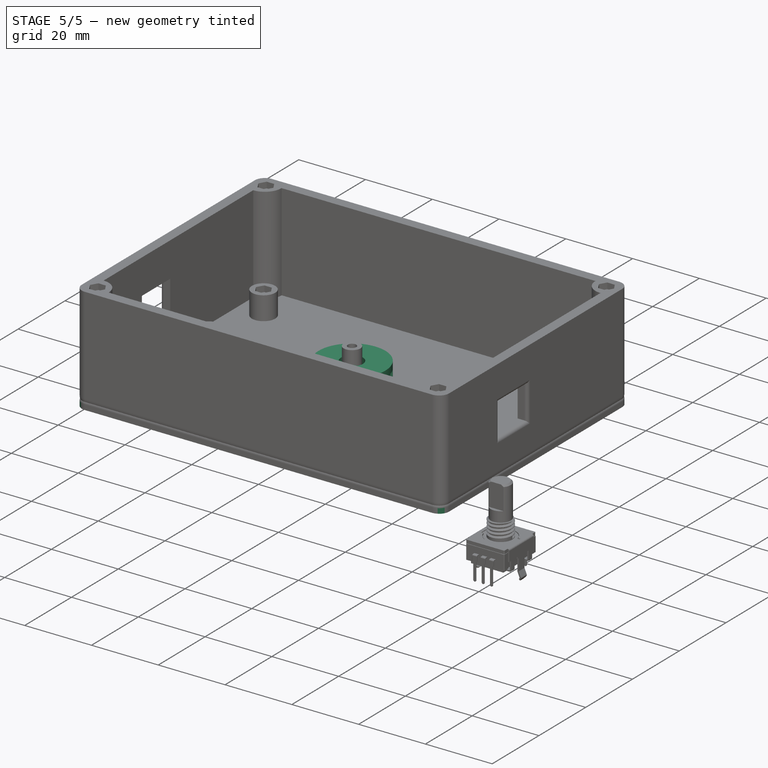
[diagram: stage 5 of 5 — iso view after this stage's code; geometry added in this stage tinted green]
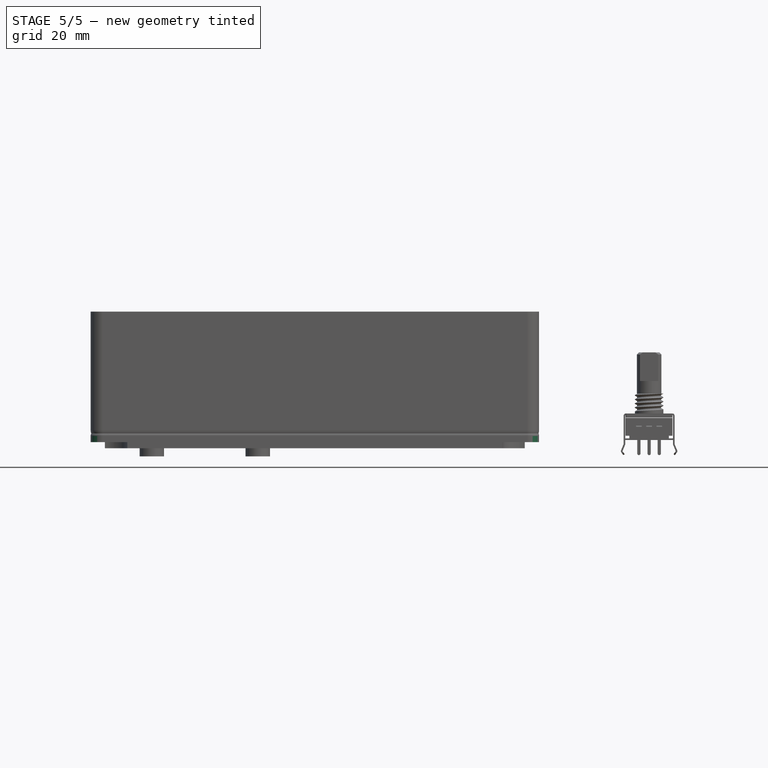
[diagram: stage 5 of 5 — front view after this stage's code; geometry added in this stage tinted green]
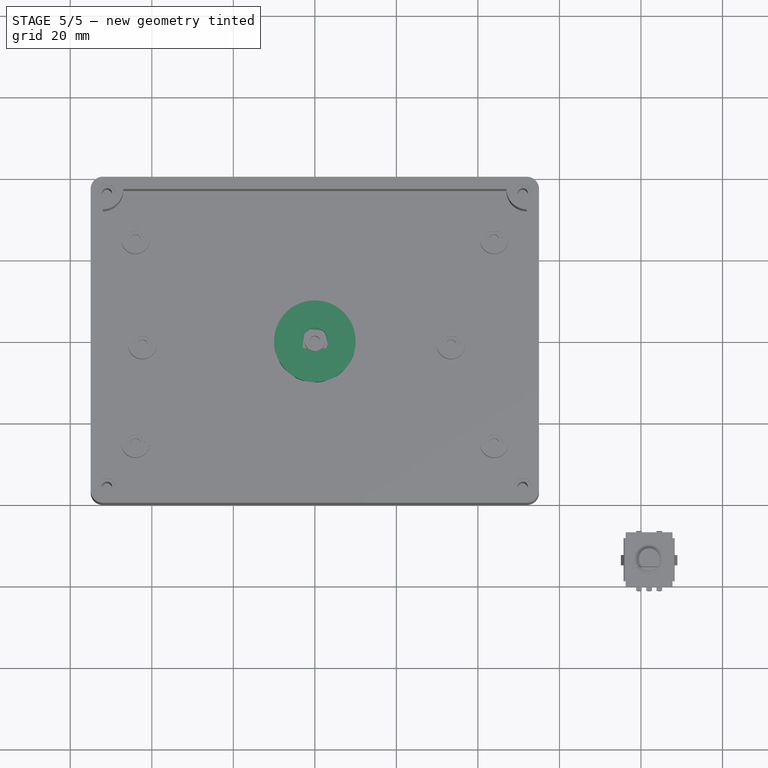
[diagram: stage 5 of 5 — top view after this stage's code; geometry added in this stage tinted green]
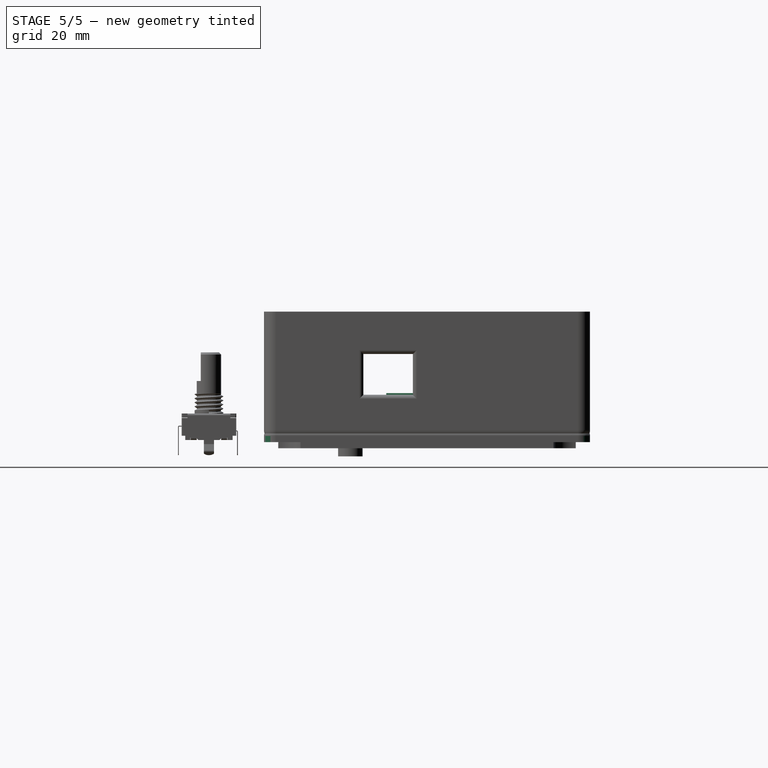
[diagram: stage 5 of 5 — right view after this stage's code; geometry added in this stage tinted green]
FEATURE [Sketcher::SketchObject] Sketch016
  ExternalGeometry = -> [Pad003]
  MapMode = 5
  Placement = pos=(0,0,3) rot=(0,0,1;0rad)
  Support = -> [Pad003]
  sketch-geometry (12):
    g0: Circle CenterX=41.25 CenterY=22.75 CenterZ=0 NormalX=0 NormalY=0 NormalZ=1 AngleXU=0 Radius=1.25
    g1: Circle CenterX=41.25 CenterY=3.75 CenterZ=0 NormalX=0 NormalY=0 NormalZ=1 AngleXU=0 Radius=1.25
    g2: LineSegment StartX=38.75 StartY=18 StartZ=0 EndX=43.75 EndY=18 EndZ=0
    g3: LineSegment StartX=43.75 StartY=18 StartZ=0 EndX=43.75 EndY=8.5 EndZ=0
    g4: LineSegment StartX=43.75 StartY=8.5 StartZ=0 EndX=38.75 EndY=8.5 EndZ=0
    g5: LineSegment StartX=38.75 StartY=8.5 StartZ=0 EndX=38.75 EndY=18 EndZ=0
    g6: LineSegment [constr] StartX=41.25 StartY=22.75 StartZ=0 EndX=41.25 EndY=18 EndZ=0
    g7: LineSegment [constr] StartX=41.25 StartY=3.75 StartZ=0 EndX=41.25 EndY=8.5 EndZ=0
    g8: LineSegment [constr] StartX=32.75 StartY=27.75 StartZ=0 EndX=55 EndY=27.75 EndZ=0
    g9: LineSegment [constr] StartX=32.75 StartY=-1.25 StartZ=0 EndX=55 EndY=-1.25 EndZ=0
    g10: LineSegment [constr] StartX=41.25 StartY=22.75 StartZ=0 EndX=41.25 EndY=27.75 EndZ=0
    g11: LineSegment [constr] StartX=41.25 StartY=3.75 StartZ=0 EndX=41.25 EndY=-1.25 EndZ=0
  constraints (34):
    c: Coincident(g2,g3)
    c: Coincident(g3,g4)
    c: Coincident(g4,g5)
    c: Coincident(g5,g2)
    c: Horizontal(g2)
    c: Horizontal(g4)
    c: Vertical(g3)
    c: Vertical(g5)
    c: Radius(g0) = 1.25
    c: Radius(g1) = 1.25
    c: DistanceY(g3,g3) = 9.5
    c: DistanceX(g4,g4) = 5
    c: Coincident(g6,g0)
    c: Vertical(g6)
    c: Coincident(g7,g1)
    c: Vertical(g7)
    c: Equal(g6,g7)
    c: Distance(g0,g1) = 19
    c: Symmetric(g2,g2,g6)
    c: Symmetric(g4,g3,g7)
    c: Coincident(g8,g-3)
    c: PointOnObject(g8,g-5)
    c: Horizontal(g8)
    c: Coincident(g9,g-4)
    c: PointOnObject(g9,g-5)
    c: Horizontal(g9)
    c: Coincident(g10,g0)
    c: PointOnObject(g10,g8)
    c: Vertical(g10)
    c: Coincident(g11,g1)
    c: PointOnObject(g11,g9)
    c: Vertical(g11)
    c: Equal(g11,g10)
    c: Distance(g2,g-6) = 6
FEATURE [PartDesign::Pocket] Pocket012
  BaseFeature = -> Pad003
  Length = 5
  Length2 = 100
  Profile = -> Sketch016
  Type = 1
FEATURE [Sketcher::SketchObject] Sketch017
  MapMode = 5
  Support = -> [XY_Plane003]
  sketch-geometry (12):
    g0: ArcOfCircle CenterX=6.25407 CenterY=7.37667 CenterZ=0 NormalX=0 NormalY=0 NormalZ=1 AngleXU=0 Radius=2.5 StartAngle=1.5708 EndAngle=4.71239
    g1: ArcOfCircle CenterX=33.2541 CenterY=7.37667 CenterZ=0 NormalX=0 NormalY=0 NormalZ=1 AngleXU=0 Radius=2.5 StartAngle=4.71239 EndAngle=7.85398
    g2: LineSegment StartX=6.25407 StartY=4.87667 StartZ=0 EndX=33.2541 EndY=4.87667 EndZ=0
    g3: LineSegment StartX=6.25407 StartY=9.87667 StartZ=0 EndX=33.2541 EndY=9.87667 EndZ=0
    g4: ArcOfCircle CenterX=6.25407 CenterY=7.37667 CenterZ=0 NormalX=0 NormalY=0 NormalZ=1 AngleXU=0 Radius=0.8 StartAngle=1.5708 EndAngle=4.71239
    g5: ArcOfCircle CenterX=8.25407 CenterY=7.37667 CenterZ=0 NormalX=0 NormalY=0 NormalZ=1 AngleXU=0 Radius=0.8 StartAngle=4.71239 EndAngle=7.85398
    g6: LineSegment StartX=6.25407 StartY=6.57667 StartZ=0 EndX=8.25407 EndY=6.57667 EndZ=0
    g7: LineSegment StartX=6.25407 StartY=8.17667 StartZ=0 EndX=8.25407 EndY=8.17667 EndZ=0
    g8: ArcOfCircle CenterX=33.2541 CenterY=7.37667 CenterZ=0 NormalX=0 NormalY=0 NormalZ=1 AngleXU=0 Radius=0.8 StartAngle=4.71239 EndAngle=7.85398
    g9: ArcOfCircle CenterX=31.2541 CenterY=7.37667 CenterZ=0 NormalX=0 NormalY=0 NormalZ=1 AngleXU=0 Radius=0.8 StartAngle=1.5708 EndAngle=4.71239
    g10: LineSegment StartX=33.2541 StartY=8.17667 StartZ=0 EndX=31.2541 EndY=8.17667 EndZ=0
    g11: LineSegment StartX=33.2541 StartY=6.57667 StartZ=0 EndX=31.2541 EndY=6.57667 EndZ=0
  constraints (26):
    c: Tangent(g0,g3) = 1.5708
    c: Tangent(g0,g2) = -1.5708
    c: Tangent(g2,g1) = -1.5708
    c: Tangent(g3,g1) = 1.5708
    c: Horizontal(g2)
    c: Equal(g0,g1)
    c: Tangent(g4,g7) = 1.5708
    c: Tangent(g4,g6) = -1.5708
    c: Tangent(g6,g5) = -1.5708
    c: Tangent(g7,g5) = 1.5708
    c: Horizontal(g6)
    c: Equal(g4,g5)
    c: Coincident(g4,g0)
    c: Tangent(g8,g11) = 1.5708
    c: Tangent(g8,g10) = -1.5708
    c: Tangent(g10,g9) = -1.5708
    c: Tangent(g11,g9) = 1.5708
    c: Horizontal(g10)
    c: Equal(g8,g9)
    c: Coincident(g8,g1)
    c: Radius(g1) = 2.5
    c: Radius(g5) = 0.8
    c: Radius(g9) = 0.8
    c: Distance(g0,g1) = 27
    c: Distance(g0,g5) = 2
    c: Distance(g1,g9) = 2
FEATURE [PartDesign::Pad] Pad004
  Length = 2
  Length2 = 100
  Profile = -> Sketch017
  Type = 0
FEATURE [PartDesign::Body] Body002  label="Tab"
  Group = -> [Sketch017,Pad004]
  Origin = -> Origin003
  Placement = pos=(-46.75,-26.2,26) rot=(0,0,1;0rad)
  Tip = -> Pad004
FEATURE [PartDesign::AdditiveCylinder] Cylinder002
  Angle = 360
  AttacherType = Attacher::AttachEngine3D
  Height = 12
  MapMode = 5
  Radius = 10
  Support = -> [XY_Plane004]
FEATURE [Sketcher::SketchObject] Sketch018
  ExternalGeometry = -> [Cylinder002]
  MapMode = 5
  Placement = pos=(0,0,0) rot=(1,0,0;3.14159rad)
  Support = -> [Cylinder002]
  sketch-geometry (5):
    g0: GeomPoint X=10 Y=0 Z=0
    g1: ArcOfCircle CenterX=0 CenterY=0 CenterZ=0 NormalX=0 NormalY=0 NormalZ=1 AngleXU=0 Radius=9 StartAngle=0 EndAngle=0.261796
    g2: LineSegment StartX=9 StartY=0 StartZ=0 EndX=10 EndY=0 EndZ=0
    g3: LineSegment StartX=8.69334 StartY=2.32934 StartZ=0 EndX=9.65927 EndY=2.58816 EndZ=0
    g4: ArcOfCircle CenterX=0 CenterY=0 CenterZ=0 NormalX=0 NormalY=0 NormalZ=1 AngleXU=0 Radius=10 StartAngle=0 EndAngle=0.261796
  constraints (13):
    c: PointOnObject(g0,g-3)
    c: PointOnObject(g0,g-1)
    c: Coincident(g1,g-1)
    c: Coincident(g2,g1)
    c: Coincident(g2,g0)
    c: Horizontal(g2)
    c: Coincident(g3,g1)
    c: Coincident(g4,g1)
    c: Coincident(g4,g0)
    c: Coincident(g4,g3)
    c: Equal(g3,g2)
    c: Angle(g2,g3) = 0.261799
    c: Distance(g1,g0) = 1
FEATURE [PartDesign::Pocket] Pocket013
  BaseFeature = -> Cylinder002
  Length = 0
  Length2 = 100
  Offset = -2
  Profile = -> Sketch018
  Type = 3
  UpToFace = -> Cylinder002 [Face2]
FEATURE [PartDesign::PolarPattern] PolarPattern
  Angle = 360
  Axis = -> Sketch018 [N_Axis]
  BaseFeature = -> Pocket013
  Occurrences = 12
  Originals = -> [Pocket013]
FEATURE [Sketcher::SketchObject] Sketch019
  MapMode = 2
  Placement = pos=(0,0,15) rot=(0,0,1;0rad)
  Support = -> [Sketch019]
  sketch-geometry (5):
    g0: Circle [constr] CenterX=0 CenterY=0 CenterZ=0 NormalX=0 NormalY=0 NormalZ=1 AngleXU=0 Radius=3.25
    g1: LineSegment [constr] StartX=-2.73861 StartY=-1.75 StartZ=0 EndX=2.73861 EndY=-1.75 EndZ=0
    g2: GeomPoint X=0 Y=-3.25 Z=0
    g3: LineSegment StartX=-2.73861 StartY=-1.75 StartZ=0 EndX=2.73861 EndY=-1.75 EndZ=0
    g4: ArcOfCircle CenterX=0 CenterY=0 CenterZ=0 NormalX=0 NormalY=0 NormalZ=1 AngleXU=0 Radius=3.25 StartAngle=5.71458 EndAngle=9.99339
  constraints (12):
    c: Coincident(g0,g-1)
    c: Radius(g0) = 3.25
    c: PointOnObject(g1,g0)
    c: Horizontal(g1)
    c: PointOnObject(g2,g0)
    c: PointOnObject(g2,g-2)
    c: Coincident(g3,g1)
    c: Coincident(g3,g1)
    c: Coincident(g4,g-1)
    c: Coincident(g4,g3)
    c: Coincident(g4,g3)
    c: Distance(g2,g3) = 1.5
FEATURE [PartDesign::Pocket] Pocket014
  BaseFeature = -> PolarPattern
  Length = 8
  Length2 = 100
  Profile = -> Sketch019
  Type = 0
FEATURE [PartDesign::Body] Body003  label="Knob"
  Group = -> [Cylinder002,Sketch018,Pocket013,PolarPattern,Sketch019,Pocket014]
  Origin = -> Origin004
  Placement = pos=(32,-19.5,47.7) rot=(0,1,0;3.14159rad)
  Tip = -> Pocket014
FEATURE [PartDesign::Fillet] Fillet001
  Base = -> Pocket012 [Edge23,Edge22,Edge25,Edge27]
  BaseFeature = -> Pocket012
  Radius = 3
  SupportTransform = true
FEATURE [PartDesign::Fillet] Fillet002
  Base = -> Fillet001 [Edge8,Edge4,Edge1,Edge5]
  BaseFeature = -> Fillet001
  Radius = 1.5
  SupportTransform = true
FEATURE [PartDesign::Chamfer] Chamfer001
  Angle = 45
  Base = -> Fillet002 [Edge17,Edge16]
  BaseFeature = -> Fillet002
  ChamferType = 0
  FlipDirection = false
  Size = 1.5
  Size2 = 1
  SupportTransform = true
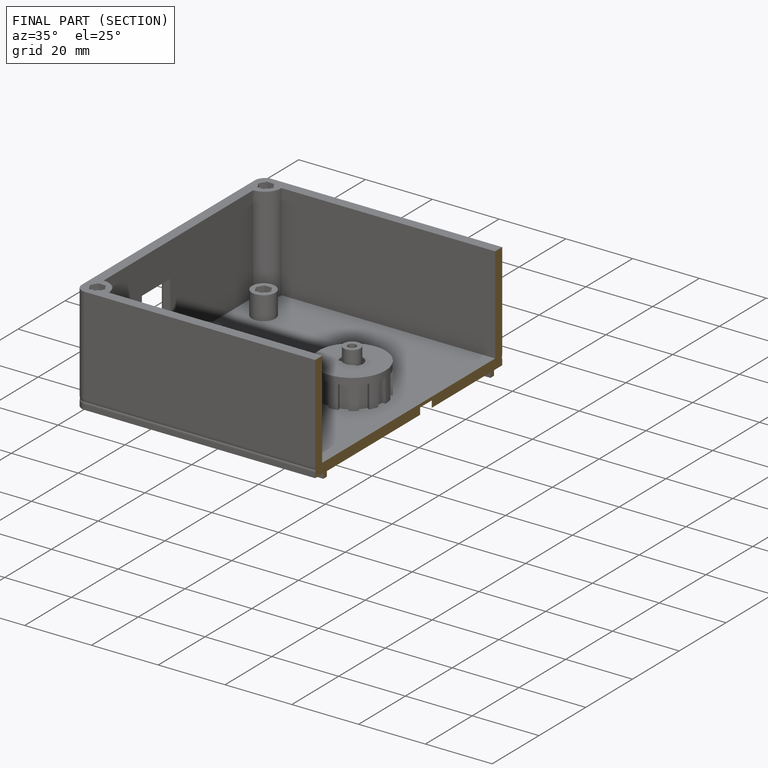
[diagram: finished part — half-section view (interior)]
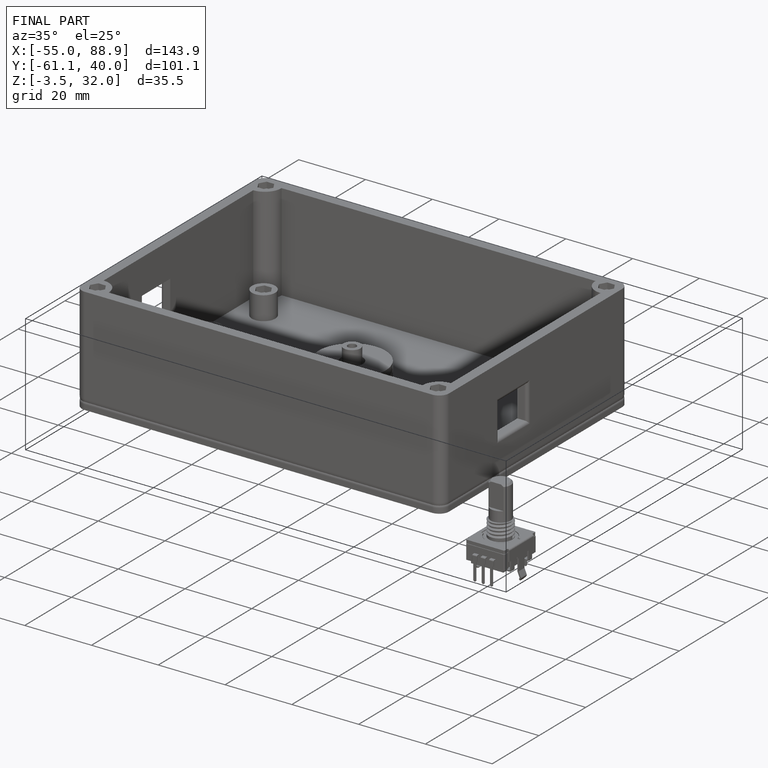
[diagram: finished part — iso view with bounding-box wireframe]
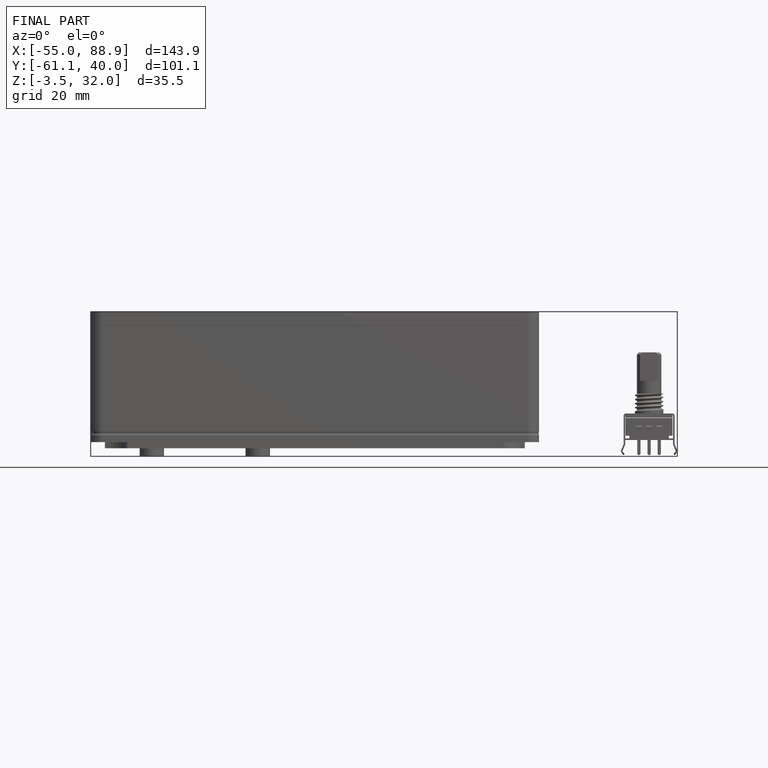
[diagram: finished part — front view with bounding-box wireframe]
